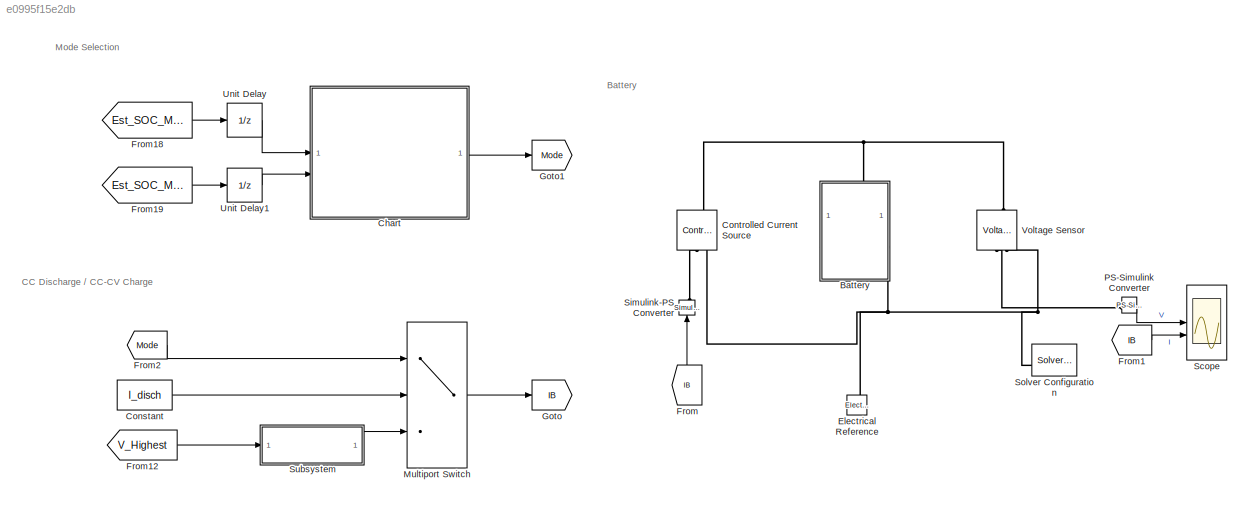
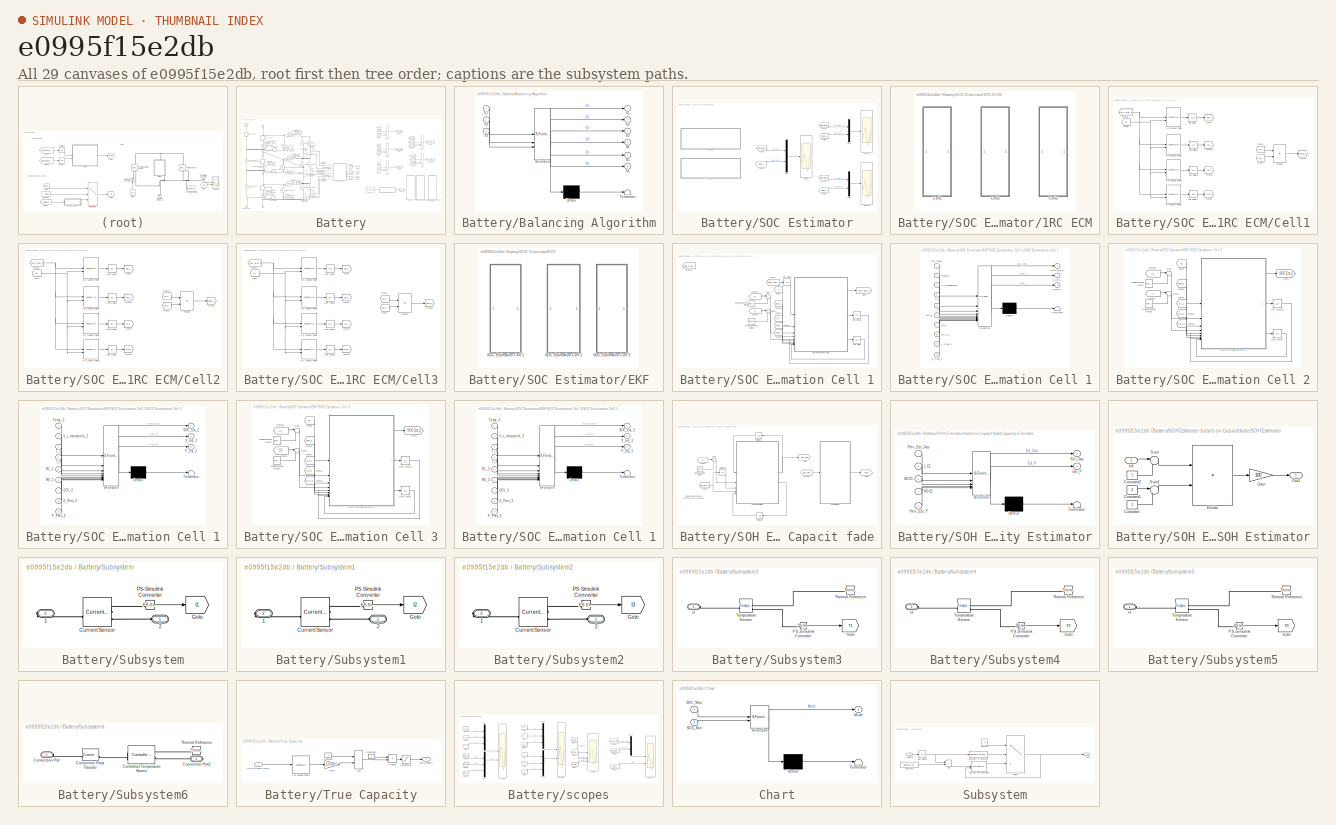
[diagram: thumbnail index - all 29 canvases of the model, root first then tree order]
MODEL slx_e0995f15e2db
KIND model
CONFIG AbsTol = auto
CONFIG EnableMultiTasking = off
CONFIG FixedStep = 0.1
CONFIG MaxStep = auto
CONFIG MinStep = auto
CONFIG RelTol = 1e-3
CONFIG SampleTimeConstraint = Unconstrained
CONFIG SolverName = ode1be
CONFIG StartTime = 0.0
CONFIG StopTime = 5*3600
WORKSPACE source: mxarray member
WORKSPACE CC = 16
WORKSPACE Cell_Max_Voltage = 4.1
WORKSPACE I_disch = -16
WORKSPACE R_EOL = 0.3
WORKSPACE R_new = 0.05
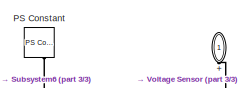
[diagram: Battery - part 1/3, top left region]
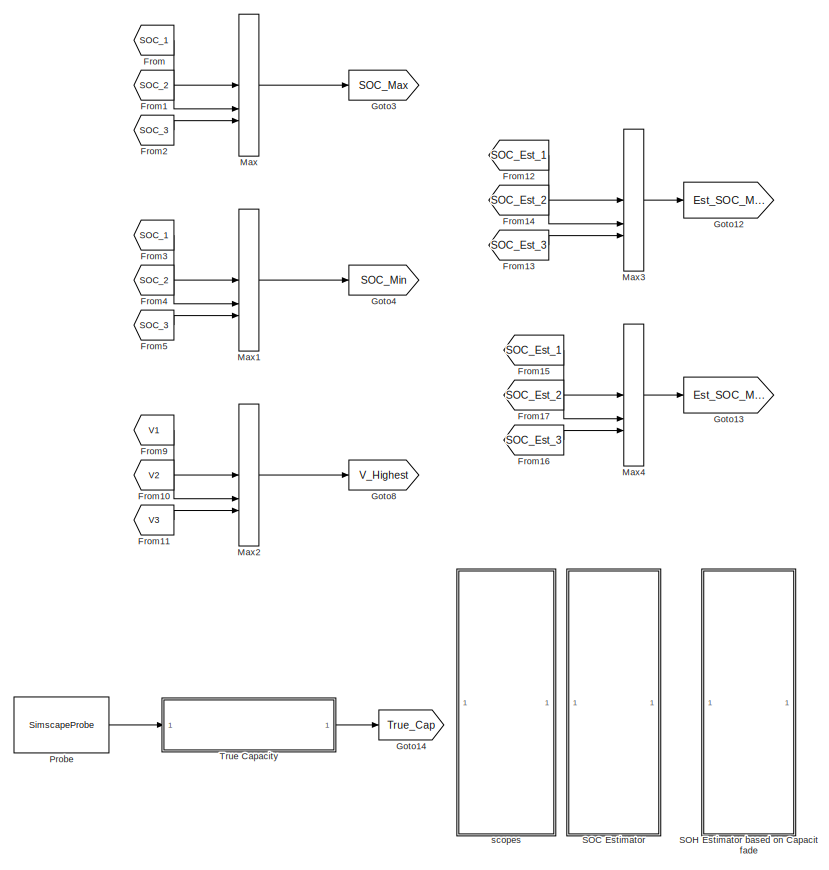
[diagram: Battery - part 2/3, right side, full height]
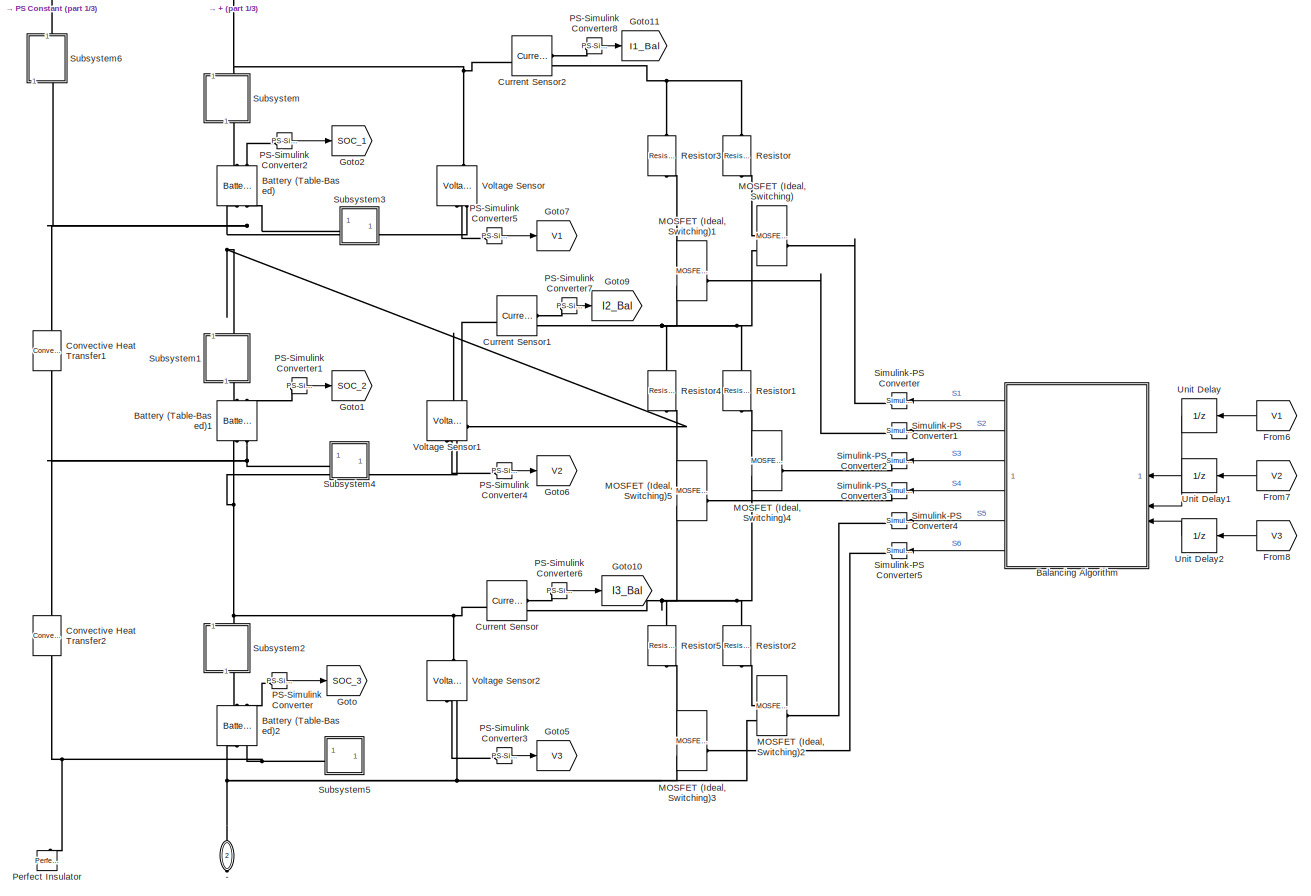
[diagram: Battery - part 3/3, left side, full height]
BLOCK [SubSystem] Battery
  NameLocation = left
  PortSchema = {"entries":[{"content":{"sides":[{"content":{},"type":"ConnectorPlacement.EquallySpacedRectSide","uuid":"9035559a-89bb-4205-8002-b8844e8b5923"},{"content":{"side":"RIGHT"},"type":"ConnectorPlacement.EquallySpacedRectSide","uuid":"f96f25ce-4def-4132-84ff-265e18101752"},{"content":{"connectorIds":["LConn1"],"side":"TOP"},"type":"ConnectorPlacement.EquallySpacedRectSide","uuid":"d277b9e1-9996-4eaa-b5...<+354ch>
BLOCK [PMIOPort] Battery/ +
  NameLocation = right
  Side = Left
BLOCK [PMIOPort] Battery/ -
  NameLocation = right
  Port = 2
  Side = Right
BLOCK [SubSystem] Battery/Balancing Algorithm
  ErrorFcn = Stateflow.Translate.translate
  PermitHierarchicalResolution = ExplicitOnly
  SFBlockType = Chart
  TreatAsAtomicUnit = on
BLOCK [Demux] Battery/Balancing Algorithm/ Demux 
  Outputs = 1
BLOCK [S-Function] Battery/Balancing Algorithm/ SFunction 
  EnableBusSupport = on
  FunctionName = sf_sfun
  PortCounts = [3 7]
  SFcnIsStateOwnerBlock = off
  SFunctionDeploymentMode = off
  Tag = Stateflow S-Function 1
BLOCK [Terminator] Battery/Balancing Algorithm/ Terminator 
BLOCK [Outport] Battery/Balancing Algorithm/S1
BLOCK [Outport] Battery/Balancing Algorithm/S2
  Port = 2
BLOCK [Outport] Battery/Balancing Algorithm/S3
  Port = 3
BLOCK [Outport] Battery/Balancing Algorithm/S4
  Port = 4
BLOCK [Outport] Battery/Balancing Algorithm/S5
  Port = 5
BLOCK [Outport] Battery/Balancing Algorithm/S6
  Port = 6
BLOCK [Inport] Battery/Balancing Algorithm/V1
BLOCK [Inport] Battery/Balancing Algorithm/V2
  Port = 2
BLOCK [Inport] Battery/Balancing Algorithm/V3
  Port = 3
BLOCK [Reference] Battery/Battery (Table-Based)  REF=batteryecm_lib/Battery
(Table-Based)
  LibrarySourceBlock = batt_lib/Cells/Battery\n(Table-Based)
  NameLocation = right
  SourceBlock = batteryecm_lib/Battery\n(Table-Based)
  SourceType = Battery\n(Table-Based)
BLOCK [Reference] Battery/Battery (Table-Based)1  REF=batteryecm_lib/Battery
(Table-Based)
  LibrarySourceBlock = batt_lib/Cells/Battery\n(Table-Based)
  NameLocation = right
  SourceBlock = batteryecm_lib/Battery\n(Table-Based)
  SourceType = Battery\n(Table-Based)
BLOCK [Reference] Battery/Battery (Table-Based)2  REF=batteryecm_lib/Battery
(Table-Based)
  LibrarySourceBlock = batt_lib/Cells/Battery\n(Table-Based)
  NameLocation = right
  SourceBlock = batteryecm_lib/Battery\n(Table-Based)
  SourceType = Battery\n(Table-Based)
BLOCK [Reference] Battery/Convective Heat Transfer1  REF=fl_lib/Thermal/Thermal Elements/Convective Heat
Transfer
  NameLocation = right
  SourceBlock = fl_lib/Thermal/Thermal Elements/Convective Heat\nTransfer
  SourceType = Convective Heat\nTransfer
BLOCK [Reference] Battery/Convective Heat Transfer2  REF=fl_lib/Thermal/Thermal Elements/Convective Heat
Transfer
  NameLocation = right
  SourceBlock = fl_lib/Thermal/Thermal Elements/Convective Heat\nTransfer
  SourceType = Convective Heat\nTransfer
BLOCK [Reference] Battery/Current Sensor  REF=fl_lib/Electrical/Electrical Sensors/Current Sensor
  SourceBlock = fl_lib/Electrical/Electrical Sensors/Current Sensor
  SourceType = Current Sensor
BLOCK [Reference] Battery/Current Sensor1  REF=fl_lib/Electrical/Electrical Sensors/Current Sensor
  SourceBlock = fl_lib/Electrical/Electrical Sensors/Current Sensor
  SourceType = Current Sensor
BLOCK [Reference] Battery/Current Sensor2  REF=fl_lib/Electrical/Electrical Sensors/Current Sensor
  SourceBlock = fl_lib/Electrical/Electrical Sensors/Current Sensor
  SourceType = Current Sensor
BLOCK [From] Battery/From
  GotoTag = SOC_1
  TagVisibility = global
BLOCK [From] Battery/From1
  GotoTag = SOC_2
  TagVisibility = global
BLOCK [From] Battery/From10
  GotoTag = V2
  TagVisibility = global
BLOCK [From] Battery/From11
  GotoTag = V3
  TagVisibility = global
BLOCK [From] Battery/From12
  GotoTag = SOC_Est_1
  TagVisibility = global
BLOCK [From] Battery/From13
  GotoTag = SOC_Est_3
  TagVisibility = global
BLOCK [From] Battery/From14
  GotoTag = SOC_Est_2
  TagVisibility = global
BLOCK [From] Battery/From15
  GotoTag = SOC_Est_1
  TagVisibility = global
BLOCK [From] Battery/From16
  GotoTag = SOC_Est_3
  TagVisibility = global
BLOCK [From] Battery/From17
  GotoTag = SOC_Est_2
  TagVisibility = global
BLOCK [From] Battery/From2
  GotoTag = SOC_3
  TagVisibility = global
BLOCK [From] Battery/From3
  GotoTag = SOC_1
  TagVisibility = global
BLOCK [From] Battery/From4
  GotoTag = SOC_2
  TagVisibility = global
BLOCK [From] Battery/From5
  GotoTag = SOC_3
  TagVisibility = global
BLOCK [From] Battery/From6
  GotoTag = V1
  NameLocation = top
  TagVisibility = global
BLOCK [From] Battery/From7
  GotoTag = V2
  NameLocation = top
  TagVisibility = global
BLOCK [From] Battery/From8
  GotoTag = V3
  NameLocation = top
  TagVisibility = global
BLOCK [From] Battery/From9
  GotoTag = V1
  TagVisibility = global
BLOCK [Goto] Battery/Goto
  GotoTag = SOC_3
  TagVisibility = global
BLOCK [Goto] Battery/Goto1
  GotoTag = SOC_2
  TagVisibility = global
BLOCK [Goto] Battery/Goto10
  GotoTag = I3_Bal
  TagVisibility = global
BLOCK [Goto] Battery/Goto11
  GotoTag = I1_Bal
  TagVisibility = global
BLOCK [Goto] Battery/Goto12
  GotoTag = Est_SOC_Max
  TagVisibility = global
BLOCK [Goto] Battery/Goto13
  GotoTag = Est_SOC_Min
  TagVisibility = global
BLOCK [Goto] Battery/Goto14
  GotoTag = True_Cap
  TagVisibility = global
BLOCK [Goto] Battery/Goto2
  GotoTag = SOC_1
  TagVisibility = global
BLOCK [Goto] Battery/Goto3
  GotoTag = SOC_Max
  TagVisibility = global
BLOCK [Goto] Battery/Goto4
  GotoTag = SOC_Min
  TagVisibility = global
BLOCK [Goto] Battery/Goto5
  GotoTag = V3
  TagVisibility = global
BLOCK [Goto] Battery/Goto6
  GotoTag = V2
  TagVisibility = global
BLOCK [Goto] Battery/Goto7
  GotoTag = V1
  TagVisibility = global
BLOCK [Goto] Battery/Goto8
  GotoTag = V_Highest
  TagVisibility = global
BLOCK [Goto] Battery/Goto9
  GotoTag = I2_Bal
  TagVisibility = global
BLOCK [Reference] Battery/MOSFET (Ideal, Switching)  REF=ee_lib/Semiconductors &
Converters/MOSFET
(Ideal,
Switching)
  SourceBlock = ee_lib/Semiconductors &\nConverters/MOSFET\n(Ideal,\nSwitching)
  SourceType = MOSFET\n(Ideal,\nSwitching)
BLOCK [Reference] Battery/MOSFET (Ideal, Switching)1  REF=ee_lib/Semiconductors &
Converters/MOSFET
(Ideal,
Switching)
  SourceBlock = ee_lib/Semiconductors &\nConverters/MOSFET\n(Ideal,\nSwitching)
  SourceType = MOSFET\n(Ideal,\nSwitching)
BLOCK [Reference] Battery/MOSFET (Ideal, Switching)2  REF=ee_lib/Semiconductors &
Converters/MOSFET
(Ideal,
Switching)
  SourceBlock = ee_lib/Semiconductors &\nConverters/MOSFET\n(Ideal,\nSwitching)
  SourceType = MOSFET\n(Ideal,\nSwitching)
BLOCK [Reference] Battery/MOSFET (Ideal, Switching)3  REF=ee_lib/Semiconductors &
Converters/MOSFET
(Ideal,
Switching)
  SourceBlock = ee_lib/Semiconductors &\nConverters/MOSFET\n(Ideal,\nSwitching)
  SourceType = MOSFET\n(Ideal,\nSwitching)
BLOCK [Reference] Battery/MOSFET (Ideal, Switching)4  REF=ee_lib/Semiconductors &
Converters/MOSFET
(Ideal,
Switching)
  SourceBlock = ee_lib/Semiconductors &\nConverters/MOSFET\n(Ideal,\nSwitching)
  SourceType = MOSFET\n(Ideal,\nSwitching)
BLOCK [Reference] Battery/MOSFET (Ideal, Switching)5  REF=ee_lib/Semiconductors &
Converters/MOSFET
(Ideal,
Switching)
  SourceBlock = ee_lib/Semiconductors &\nConverters/MOSFET\n(Ideal,\nSwitching)
  SourceType = MOSFET\n(Ideal,\nSwitching)
BLOCK [MinMax] Battery/Max
  Function = max
  Inputs = 3
BLOCK [MinMax] Battery/Max1
  Inputs = 3
BLOCK [MinMax] Battery/Max2
  Function = max
  Inputs = 3
BLOCK [MinMax] Battery/Max3
  Function = max
  Inputs = 3
BLOCK [MinMax] Battery/Max4
  Inputs = 3
BLOCK [Reference] Battery/PS Constant  REF=fl_lib/Physical Signals/Sources/PS Constant
  NameLocation = left
  SourceBlock = fl_lib/Physical Signals/Sources/PS Constant
  SourceType = PS Constant
BLOCK [Reference] Battery/PS-Simulink Converter  REF=nesl_utility/PS-Simulink
Converter
  SourceBlock = nesl_utility/PS-Simulink\nConverter
  SourceType = PS-Simulink\nConverter
BLOCK [Reference] Battery/PS-Simulink Converter1  REF=nesl_utility/PS-Simulink
Converter
  SourceBlock = nesl_utility/PS-Simulink\nConverter
  SourceType = PS-Simulink\nConverter
BLOCK [Reference] Battery/PS-Simulink Converter2  REF=nesl_utility/PS-Simulink
Converter
  SourceBlock = nesl_utility/PS-Simulink\nConverter
  SourceType = PS-Simulink\nConverter
BLOCK [Reference] Battery/PS-Simulink Converter3  REF=nesl_utility/PS-Simulink
Converter
  SourceBlock = nesl_utility/PS-Simulink\nConverter
  SourceType = PS-Simulink\nConverter
BLOCK [Reference] Battery/PS-Simulink Converter4  REF=nesl_utility/PS-Simulink
Converter
  SourceBlock = nesl_utility/PS-Simulink\nConverter
  SourceType = PS-Simulink\nConverter
BLOCK [Reference] Battery/PS-Simulink Converter5  REF=nesl_utility/PS-Simulink
Converter
  SourceBlock = nesl_utility/PS-Simulink\nConverter
  SourceType = PS-Simulink\nConverter
BLOCK [Reference] Battery/PS-Simulink Converter6  REF=nesl_utility/PS-Simulink
Converter
  SourceBlock = nesl_utility/PS-Simulink\nConverter
  SourceType = PS-Simulink\nConverter
BLOCK [Reference] Battery/PS-Simulink Converter7  REF=nesl_utility/PS-Simulink
Converter
  SourceBlock = nesl_utility/PS-Simulink\nConverter
  SourceType = PS-Simulink\nConverter
BLOCK [Reference] Battery/PS-Simulink Converter8  REF=nesl_utility/PS-Simulink
Converter
  SourceBlock = nesl_utility/PS-Simulink\nConverter
  SourceType = PS-Simulink\nConverter
BLOCK [Reference] Battery/Perfect Insulator  REF=fl_lib/Thermal/Thermal Elements/Perfect Insulator
  NameLocation = right
  SourceBlock = fl_lib/Thermal/Thermal Elements/Perfect Insulator
  SourceType = Perfect Insulator
BLOCK [SimscapeProbe] Battery/Probe
  BoundBlock = 29
  Variables = {num_cycles}
BLOCK [Reference] Battery/Resistor  REF=fl_lib/Electrical/Electrical Elements/Resistor
  NameLocation = left
  SourceBlock = fl_lib/Electrical/Electrical Elements/Resistor
  SourceType = Resistor
BLOCK [Reference] Battery/Resistor1  REF=fl_lib/Electrical/Electrical Elements/Resistor
  NameLocation = left
  SourceBlock = fl_lib/Electrical/Electrical Elements/Resistor
  SourceType = Resistor
BLOCK [Reference] Battery/Resistor2  REF=fl_lib/Electrical/Electrical Elements/Resistor
  NameLocation = left
  SourceBlock = fl_lib/Electrical/Electrical Elements/Resistor
  SourceType = Resistor
BLOCK [Reference] Battery/Resistor3  REF=fl_lib/Electrical/Electrical Elements/Resistor
  NameLocation = left
  SourceBlock = fl_lib/Electrical/Electrical Elements/Resistor
  SourceType = Resistor
BLOCK [Reference] Battery/Resistor4  REF=fl_lib/Electrical/Electrical Elements/Resistor
  NameLocation = left
  SourceBlock = fl_lib/Electrical/Electrical Elements/Resistor
  SourceType = Resistor
BLOCK [Reference] Battery/Resistor5  REF=fl_lib/Electrical/Electrical Elements/Resistor
  NameLocation = left
  SourceBlock = fl_lib/Electrical/Electrical Elements/Resistor
  SourceType = Resistor
BLOCK [SubSystem] Battery/SOC Estimator
BLOCK [SubSystem] Battery/SOC Estimator/1RC ECM
BLOCK [SubSystem] Battery/SOC Estimator/1RC ECM/Cell1
BLOCK [Lookup_n-D] Battery/SOC Estimator/1RC ECM/Cell1/2-D Lookup Table
  BreakpointsForDimension1 = [0;0.1;0.2;0.3;0.4;0.5;0.6;0.7;0.8;0.9000;1.0000]
  BreakpointsForDimension2 = [278.15 293.15 313.15]
  InputPortMap = u0,u1
  InternalRulePriority = Speed
  RndMeth = Simplest
  Table = [0.0117    0.0085    0.0090;\n    0.0110    0.0085    0.0090;\n    0.0112    0.0086    0.0091;\n    0.0114    0.0087    0.0092;\n    0.0110    0.0084    0.0090;\n    0.0109    0.0083    0.0088;\n    0.0107    0.0082    0.0086;\n    0.0107    0.0083    0.0091;\n    0.0109    0.0086    0.0095;\n    0.0113    0.0085    0.0089;\n    0.0116    0.0085    0.0089]
BLOCK [Lookup_n-D] Battery/SOC Estimator/1RC ECM/Cell1/2-D Lookup Table1
  BreakpointsForDimension1 = [0;0.1;0.2;0.3;0.4;0.5;0.6;0.7;0.8;0.9000;1.0000]
  BreakpointsForDimension2 = [278.15 293.15 313.15]
  InputPortMap = u0,u1
  InternalRulePriority = Speed
  RndMeth = Simplest
  Table = [0.0109    0.0029    0.0013;\n    0.0069    0.0024    0.0012;\n    0.0060    0.0022    0.0011;\n    0.0056    0.0021    0.0011;\n    0.0052    0.0020    0.0010;\n    0.0047    0.0016    0.0009;\n    0.0034    0.0016    0.0010;\n    0.0033    0.0023    0.0014;\n    0.0033    0.0018    0.0011;\n    0.0028    0.0017    0.0011;\n    0.0026    0.0016    0.0010]
BLOCK [Lookup_n-D] Battery/SOC Estimator/1RC ECM/Cell1/2-D Lookup Table2
  BreakpointsForDimension1 = [0;0.1;0.2;0.3;0.4;0.5;0.6;0.7;0.8;0.9000;1.0000]
  BreakpointsForDimension2 = [278.15 293.15 313.15]
  InputPortMap = u0,u1
  InternalRulePriority = Speed
  RndMeth = Simplest
  Table = [\n    1917, 12414, 30615;\n    4652, 18875, 33000;\n    3533, 12864, 40000;\n    23286, 4810, 47545;\n    20000, 3100, 36500;\n    1745, 18750, 26333;\n    18029, 33625, 48300;\n    15030, 53696, 38143;\n    12242, 18389, 26727;\n    10000, 19882, 16727;\n    9038, 23375, 3600\n];
BLOCK [Lookup_n-D] Battery/SOC Estimator/1RC ECM/Cell1/2-D Lookup Table3
  BreakpointsForDimension1 = [0;0.1;0.2;0.3;0.4;0.5;0.6;0.7;0.8;0.9000;1.0000]
  BreakpointsForDimension2 = [278.15 293.15 313.15]
  InputPortMap = u0,u1
  InternalRulePriority = Speed
  RndMeth = Simplest
  Table = [3.4966    3.5057    3.5148;\n    3.5519    3.5660    3.5653;\n    3.5813    3.5911    3.5999;\n    3.6183    3.6337    3.6402;\n    3.6871    3.6921    3.6993;\n    3.7066    3.7127    3.7213;\n    3.7611    3.7665    3.7922;\n    3.8111    3.8531    3.8971;\n    3.9131    3.9259    3.9376;\n    4.0748    4.0777    4.0821;\n    4.1923    4.1928    4.1930]
BLOCK [From] Battery/SOC Estimator/1RC ECM/Cell1/From
  GotoTag = T1
  TagVisibility = global
BLOCK [From] Battery/SOC Estimator/1RC ECM/Cell1/From1
  GotoTag = R1_1
  TagVisibility = global
BLOCK [From] Battery/SOC Estimator/1RC ECM/Cell1/From2
  GotoTag = C1_1
  TagVisibility = global
BLOCK [From] Battery/SOC Estimator/1RC ECM/Cell1/From8
  GotoTag = SOC_Est_1
  TagVisibility = global
BLOCK [Goto] Battery/SOC Estimator/1RC ECM/Cell1/Goto
  GotoTag = R0_1
  TagVisibility = global
BLOCK [Goto] Battery/SOC Estimator/1RC ECM/Cell1/Goto1
  GotoTag = R1_1
  TagVisibility = global
BLOCK [Goto] Battery/SOC Estimator/1RC ECM/Cell1/Goto2
  GotoTag = C1_1
  TagVisibility = global
BLOCK [Goto] Battery/SOC Estimator/1RC ECM/Cell1/Goto3
  GotoTag = OCV_1
  TagVisibility = global
BLOCK [Goto] Battery/SOC Estimator/1RC ECM/Cell1/Goto4
  GotoTag = Time_1
  TagVisibility = global
BLOCK [Product] Battery/SOC Estimator/1RC ECM/Cell1/Product
BLOCK [UnitDelay] Battery/SOC Estimator/1RC ECM/Cell1/Unit Delay
  HasFrameUpgradeWarning = on
  InitialCondition = 0.0084
  SampleTime = -1
BLOCK [UnitDelay] Battery/SOC Estimator/1RC ECM/Cell1/Unit Delay1
  HasFrameUpgradeWarning = on
  InitialCondition = 0.0020
  SampleTime = -1
BLOCK [UnitDelay] Battery/SOC Estimator/1RC ECM/Cell1/Unit Delay2
  HasFrameUpgradeWarning = on
  InitialCondition = 0.0310
  SampleTime = -1
BLOCK [UnitDelay] Battery/SOC Estimator/1RC ECM/Cell1/Unit Delay3
  HasFrameUpgradeWarning = on
  InitialCondition = 3.6921
  SampleTime = -1
BLOCK [SubSystem] Battery/SOC Estimator/1RC ECM/Cell2
BLOCK [Lookup_n-D] Battery/SOC Estimator/1RC ECM/Cell2/2-D Lookup Table
  BreakpointsForDimension1 = [0;0.1;0.2;0.3;0.4;0.5;0.6;0.7;0.8;0.9000;1.0000]
  BreakpointsForDimension2 = [278.15 293.15 313.15]
  InputPortMap = u0,u1
  InternalRulePriority = Speed
  RndMeth = Simplest
  Table = [0.0113    0.0091    0.0083;\n    0.0108    0.0079    0.0092;\n    0.0111    0.0083    0.0094;\n    0.0110    0.0090    0.0096;\n    0.0108    0.0080    0.0087;\n    0.0107    0.0085    0.0091;\n    0.0106    0.0081    0.0087;\n    0.0106    0.0082    0.0090;\n    0.0111    0.0084    0.0093;\n    0.0111    0.0082    0.0090;\n    0.0115    0.0084    0.0093]
BLOCK [Lookup_n-D] Battery/SOC Estimator/1RC ECM/Cell2/2-D Lookup Table1
  BreakpointsForDimension1 = [0;0.1;0.2;0.3;0.4;0.5;0.6;0.7;0.8;0.9000;1.0000]
  BreakpointsForDimension2 = [278.15 293.15 313.15]
  InputPortMap = u0,u1
  InternalRulePriority = Speed
  RndMeth = Simplest
  Table = [0.0107    0.0028    0.0012;\n               0.0070    0.0023    0.0011;\n               0.0061    0.0021    0.0012;\n               0.0057    0.0022    0.0010;\n               0.0051    0.0021    0.0010;\n               0.0048    0.0017    0.0009;\n               0.0035    0.0017    0.0010;\n               0.0034    0.0023    0.0015;\n               0.0033    0.0018    0.0011;\n               0.0027    0....<+58ch>
BLOCK [Lookup_n-D] Battery/SOC Estimator/1RC ECM/Cell2/2-D Lookup Table2
  BreakpointsForDimension1 = [0;0.1;0.2;0.3;0.4;0.5;0.6;0.7;0.8;0.9000;1.0000]
  BreakpointsForDimension2 = [278.15 293.15 313.15]
  InputPortMap = u0,u1
  InternalRulePriority = Speed
  RndMeth = Simplest
  Table = [\n    2140.0, 13357.0, 34500.0;\n    47860.0, 20391.0, 35455.0;\n    35740.0, 13762.0, 37083.0;\n    23018.0, 4909.0, 51200.0;\n    20216.0, 3238.0, 36700.0;\n    16670.0, 18706.0, 24667.0;\n    17743.0, 32588.0, 49300.0;\n    14382.0, 53783.0, 35400.0;\n    12455.0, 18222.0, 27364.0;\n    10630.0, 21688.0, 17636.0;\n    9760.0, 22118.0, 2500.0\n];
BLOCK [Lookup_n-D] Battery/SOC Estimator/1RC ECM/Cell2/2-D Lookup Table3
  BreakpointsForDimension1 = [0;0.1;0.2;0.3;0.4;0.5;0.6;0.7;0.8;0.9000;1.0000]
  BreakpointsForDimension2 = [278.15 293.15 313.15]
  InputPortMap = u0,u1
  InternalRulePriority = Speed
  RndMeth = Simplest
  Table = [3.3982    3.4675    3.5113;\n    3.4661    3.4887    3.5583;\n    3.5049    3.5349    3.5691;\n    3.6028    3.6097    3.6454;\n    3.6308    3.6507    3.6665;\n    3.6894    3.7048    3.7223;\n    3.7552    3.7841    3.8085;\n    3.8036    3.8479    3.8945;\n    3.9046    3.9305    3.9620;\n    4.0752    4.0786    4.1127;\n    4.1734    4.1926    4.2048]
BLOCK [From] Battery/SOC Estimator/1RC ECM/Cell2/From
  GotoTag = T2
  TagVisibility = global
BLOCK [From] Battery/SOC Estimator/1RC ECM/Cell2/From1
  GotoTag = SOC_Est_2
  TagVisibility = global
BLOCK [From] Battery/SOC Estimator/1RC ECM/Cell2/From2
  GotoTag = R1_2
  TagVisibility = global
BLOCK [From] Battery/SOC Estimator/1RC ECM/Cell2/From3
  GotoTag = C1_2
  TagVisibility = global
BLOCK [Goto] Battery/SOC Estimator/1RC ECM/Cell2/Goto
  GotoTag = R0_2
  TagVisibility = global
BLOCK [Goto] Battery/SOC Estimator/1RC ECM/Cell2/Goto1
  GotoTag = R1_2
  TagVisibility = global
BLOCK [Goto] Battery/SOC Estimator/1RC ECM/Cell2/Goto2
  GotoTag = C1_2
  TagVisibility = global
BLOCK [Goto] Battery/SOC Estimator/1RC ECM/Cell2/Goto3
  GotoTag = OCV_2
  TagVisibility = global
BLOCK [Goto] Battery/SOC Estimator/1RC ECM/Cell2/Goto4
  GotoTag = Time_2
  TagVisibility = global
BLOCK [Product] Battery/SOC Estimator/1RC ECM/Cell2/Product
BLOCK [UnitDelay] Battery/SOC Estimator/1RC ECM/Cell2/Unit Delay
  HasFrameUpgradeWarning = on
  InitialCondition = 0.0084
  SampleTime = -1
BLOCK [UnitDelay] Battery/SOC Estimator/1RC ECM/Cell2/Unit Delay1
  HasFrameUpgradeWarning = on
  InitialCondition = 0.0084
  SampleTime = -1
BLOCK [UnitDelay] Battery/SOC Estimator/1RC ECM/Cell2/Unit Delay2
  HasFrameUpgradeWarning = on
  InitialCondition = 0.0084
  SampleTime = -1
BLOCK [UnitDelay] Battery/SOC Estimator/1RC ECM/Cell2/Unit Delay3
  HasFrameUpgradeWarning = on
  InitialCondition = 0.0084
  SampleTime = -1
BLOCK [SubSystem] Battery/SOC Estimator/1RC ECM/Cell3
BLOCK [Lookup_n-D] Battery/SOC Estimator/1RC ECM/Cell3/2-D Lookup Table
  BreakpointsForDimension1 = [0;0.1;0.2;0.3;0.4;0.5;0.6;0.7;0.8;0.9000;1.0000]
  BreakpointsForDimension2 = [278.15 293.15 313.15]
  InputPortMap = u0,u1
  InternalRulePriority = Speed
  RndMeth = Simplest
  Table = [0.0111    0.0088    0.0094;\n    0.0109    0.0083    0.0091;\n    0.0113    0.0087    0.0092;\n    0.0115    0.0089    0.0090;\n    0.0112    0.0083    0.0092;\n    0.0108    0.0082    0.0085;\n    0.0109    0.0080    0.0088;\n    0.0108    0.0085    0.0092;\n    0.0110    0.0087    0.0095;\n    0.0110    0.0084    0.0090;\n    0.0112    0.0085    0.0092]
BLOCK [Lookup_n-D] Battery/SOC Estimator/1RC ECM/Cell3/2-D Lookup Table1
  BreakpointsForDimension1 = [0;0.1;0.2;0.3;0.4;0.5;0.6;0.7;0.8;0.9000;1.0000]
  BreakpointsForDimension2 = [278.15 293.15 313.15]
  InputPortMap = u0,u1
  InternalRulePriority = Speed
  RndMeth = Simplest
  Table = [0.0108    0.0029    0.0014;\n    0.0071    0.0025    0.0013;\n    0.0062    0.0023    0.0012;\n    0.0058    0.0022    0.0011;\n    0.0053    0.0020    0.0011;\n    0.0049    0.0017    0.0008;\n    0.0034    0.0016    0.0011;\n    0.0032    0.0024    0.0015;\n    0.0034    0.0019    0.0012;\n    0.0029    0.0018    0.0012;\n    0.0027    0.0016    0.0011]
BLOCK [Lookup_n-D] Battery/SOC Estimator/1RC ECM/Cell3/2-D Lookup Table2
  BreakpointsForDimension1 = [0;0.1;0.2;0.3;0.4;0.5;0.6;0.7;0.8;0.9000;1.0000]
  BreakpointsForDimension2 = [278.15 293.15 313.15]
  InputPortMap = u0,u1
  InternalRulePriority = Speed
  RndMeth = Simplest
  Table = [\n    2481.0, 14517.0, 31143.0;\n    49440.0, 18680.0, 29154.0;\n    34030.0, 12000.0, 37833.0;\n    22397.0, 5227.0, 48091.0;\n    19547.0, 3000.0, 33909.0;\n    14490.0, 17706.0, 26625.0;\n    18647.0, 32875.0, 44091.0;\n    15750.0, 50792.0, 35200.0;\n    12294.0, 17368.0, 25250.0;\n    98280.0, 18944.0, 14917.0;\n    89260.0, 24188.0, 2455.0\n];
BLOCK [Lookup_n-D] Battery/SOC Estimator/1RC ECM/Cell3/2-D Lookup Table3
  BreakpointsForDimension1 = [0;0.1;0.2;0.3;0.4;0.5;0.6;0.7;0.8;0.9000;1.0000]
  BreakpointsForDimension2 = [278.15 293.15 313.15]
  InputPortMap = u0,u1
  InternalRulePriority = Speed
  RndMeth = Simplest
  Table = [3.5401    3.5396    3.5774;\n    3.5358    3.5420    3.5681;\n    3.5927    3.5929    3.6060;\n    3.6439    3.6419    3.6703;\n    3.6918    3.7065    3.7267;\n    3.7452    3.7613    3.7676;\n    3.8012    3.8302    3.8439;\n    3.8387    3.8762    3.9140;\n    3.9398    3.9668    3.9903;\n    4.1102    4.1221    4.1420;\n    4.1742    4.2065    4.2399]
BLOCK [From] Battery/SOC Estimator/1RC ECM/Cell3/From
  GotoTag = T3
  TagVisibility = global
BLOCK [From] Battery/SOC Estimator/1RC ECM/Cell3/From1
  GotoTag = SOC_Est_3
  TagVisibility = global
BLOCK [From] Battery/SOC Estimator/1RC ECM/Cell3/From2
  GotoTag = R1_3
  TagVisibility = global
BLOCK [From] Battery/SOC Estimator/1RC ECM/Cell3/From3
  GotoTag = C1_3
  TagVisibility = global
BLOCK [Goto] Battery/SOC Estimator/1RC ECM/Cell3/Goto
  GotoTag = R0_3
  TagVisibility = global
BLOCK [Goto] Battery/SOC Estimator/1RC ECM/Cell3/Goto1
  GotoTag = R1_3
  TagVisibility = global
BLOCK [Goto] Battery/SOC Estimator/1RC ECM/Cell3/Goto2
  GotoTag = C1_3
  TagVisibility = global
BLOCK [Goto] Battery/SOC Estimator/1RC ECM/Cell3/Goto3
  GotoTag = OCV_3
  TagVisibility = global
BLOCK [Goto] Battery/SOC Estimator/1RC ECM/Cell3/Goto4
  GotoTag = Time_3
  TagVisibility = global
BLOCK [Product] Battery/SOC Estimator/1RC ECM/Cell3/Product
BLOCK [UnitDelay] Battery/SOC Estimator/1RC ECM/Cell3/Unit Delay
  HasFrameUpgradeWarning = on
  InitialCondition = 0.0084
  SampleTime = -1
BLOCK [UnitDelay] Battery/SOC Estimator/1RC ECM/Cell3/Unit Delay1
  HasFrameUpgradeWarning = on
  InitialCondition = 0.0084
  SampleTime = -1
BLOCK [UnitDelay] Battery/SOC Estimator/1RC ECM/Cell3/Unit Delay2
  HasFrameUpgradeWarning = on
  InitialCondition = 0.0084
  SampleTime = -1
BLOCK [UnitDelay] Battery/SOC Estimator/1RC ECM/Cell3/Unit Delay3
  HasFrameUpgradeWarning = on
  InitialCondition = 0.0084
  SampleTime = -1
BLOCK [SubSystem] Battery/SOC Estimator/EKF
BLOCK [SubSystem] Battery/SOC Estimator/EKF/SOC Estimation Cell 1
BLOCK [From] Battery/SOC Estimator/EKF/SOC Estimation Cell 1/From
  GotoTag = T1
  TagVisibility = global
BLOCK [From] Battery/SOC Estimator/EKF/SOC Estimation Cell 1/From1
  GotoTag = I1
  TagVisibility = global
BLOCK [From] Battery/SOC Estimator/EKF/SOC Estimation Cell 1/From12
  GotoTag = V1
  TagVisibility = global
BLOCK [From] Battery/SOC Estimator/EKF/SOC Estimation Cell 1/From2
  GotoTag = Est_Cap
  TagVisibility = global
BLOCK [From] Battery/SOC Estimator/EKF/SOC Estimation Cell 1/From3
  GotoTag = Time_1
  TagVisibility = global
BLOCK [From] Battery/SOC Estimator/EKF/SOC Estimation Cell 1/From4
  GotoTag = R1_1
  TagVisibility = global
BLOCK [From] Battery/SOC Estimator/EKF/SOC Estimation Cell 1/From5
  GotoTag = OCV_1
  TagVisibility = global
BLOCK [From] Battery/SOC Estimator/EKF/SOC Estimation Cell 1/From6
  GotoTag = R0_1
  TagVisibility = global
BLOCK [From] Battery/SOC Estimator/EKF/SOC Estimation Cell 1/From7
  GotoTag = Est_Cap
  TagVisibility = global
BLOCK [Goto] Battery/SOC Estimator/EKF/SOC Estimation Cell 1/Goto
  GotoTag = SOC_Est_1
  TagVisibility = global
BLOCK [Reference] Battery/SOC Estimator/EKF/SOC Estimation Cell 1/Measurement Noise  REF=simulink/Sources/Band-Limited
White Noise
  SourceBlock = simulink/Sources/Band-Limited\nWhite Noise
  SourceType = Band-Limited White Noise.
BLOCK [Reference] Battery/SOC Estimator/EKF/SOC Estimation Cell 1/Measurement Noise1  REF=simulink/Sources/Band-Limited
White Noise
  SourceBlock = simulink/Sources/Band-Limited\nWhite Noise
  SourceType = Band-Limited White Noise.
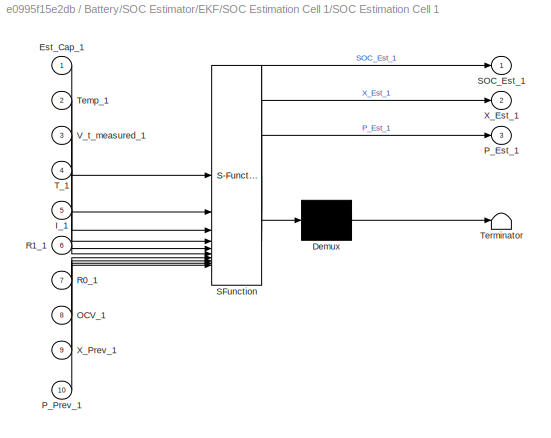
BLOCK [SubSystem] Battery/SOC Estimator/EKF/SOC Estimation Cell 1/SOC Estimation Cell 1
  ErrorFcn = Stateflow.Translate.translate
  PermitHierarchicalResolution = ExplicitOnly
  SFBlockType = MATLAB Function
  TreatAsAtomicUnit = on
BLOCK [Demux] Battery/SOC Estimator/EKF/SOC Estimation Cell 1/SOC Estimation Cell 1/ Demux 
  Outputs = 1
BLOCK [S-Function] Battery/SOC Estimator/EKF/SOC Estimation Cell 1/SOC Estimation Cell 1/ SFunction 
  EnableBusSupport = on
  FunctionName = sf_sfun
  PortCounts = [10 4]
  SFcnIsStateOwnerBlock = off
  SFunctionDeploymentMode = off
  Tag = Stateflow S-Function 10
BLOCK [Terminator] Battery/SOC Estimator/EKF/SOC Estimation Cell 1/SOC Estimation Cell 1/ Terminator 
BLOCK [Inport] Battery/SOC Estimator/EKF/SOC Estimation Cell 1/SOC Estimation Cell 1/Est_Cap_1
BLOCK [Inport] Battery/SOC Estimator/EKF/SOC Estimation Cell 1/SOC Estimation Cell 1/I_1
  Port = 5
BLOCK [Inport] Battery/SOC Estimator/EKF/SOC Estimation Cell 1/SOC Estimation Cell 1/OCV_1
  Port = 8
BLOCK [Outport] Battery/SOC Estimator/EKF/SOC Estimation Cell 1/SOC Estimation Cell 1/P_Est_1
  Port = 3
BLOCK [Inport] Battery/SOC Estimator/EKF/SOC Estimation Cell 1/SOC Estimation Cell 1/P_Prev_1
  Port = 10
BLOCK [Inport] Battery/SOC Estimator/EKF/SOC Estimation Cell 1/SOC Estimation Cell 1/R0_1
  Port = 7
BLOCK [Inport] Battery/SOC Estimator/EKF/SOC Estimation Cell 1/SOC Estimation Cell 1/R1_1
  Port = 6
BLOCK [Outport] Battery/SOC Estimator/EKF/SOC Estimation Cell 1/SOC Estimation Cell 1/SOC_Est_1
BLOCK [Inport] Battery/SOC Estimator/EKF/SOC Estimation Cell 1/SOC Estimation Cell 1/T_1
  Port = 4
BLOCK [Inport] Battery/SOC Estimator/EKF/SOC Estimation Cell 1/SOC Estimation Cell 1/Temp_1
  Port = 2
BLOCK [Inport] Battery/SOC Estimator/EKF/SOC Estimation Cell 1/SOC Estimation Cell 1/V_t_measured_1
  Port = 3
BLOCK [Outport] Battery/SOC Estimator/EKF/SOC Estimation Cell 1/SOC Estimation Cell 1/X_Est_1
  Port = 2
BLOCK [Inport] Battery/SOC Estimator/EKF/SOC Estimation Cell 1/SOC Estimation Cell 1/X_Prev_1
  Port = 9
BLOCK [Sum] Battery/SOC Estimator/EKF/SOC Estimation Cell 1/Sum
  Inputs = |++
BLOCK [Sum] Battery/SOC Estimator/EKF/SOC Estimation Cell 1/Sum1
  Inputs = |++
BLOCK [UnitDelay] Battery/SOC Estimator/EKF/SOC Estimation Cell 1/Unit Delay
  HasFrameUpgradeWarning = on
  InitialCondition = [0.02 0 ; 0 0.01]
  SampleTime = -1
BLOCK [UnitDelay] Battery/SOC Estimator/EKF/SOC Estimation Cell 1/Unit Delay1
  HasFrameUpgradeWarning = on
  InitialCondition = [0.4;0]
  SampleTime = -1
BLOCK [UnitDelay] Battery/SOC Estimator/EKF/SOC Estimation Cell 1/Unit Delay2
  HasFrameUpgradeWarning = on
  InitialCondition = 4
  SampleTime = -1
BLOCK [SubSystem] Battery/SOC Estimator/EKF/SOC Estimation Cell 2
BLOCK [From] Battery/SOC Estimator/EKF/SOC Estimation Cell 2/From
  GotoTag = T2
  TagVisibility = global
BLOCK [From] Battery/SOC Estimator/EKF/SOC Estimation Cell 2/From1
  GotoTag = I2
  TagVisibility = global
BLOCK [From] Battery/SOC Estimator/EKF/SOC Estimation Cell 2/From12
  GotoTag = V2
  TagVisibility = global
BLOCK [From] Battery/SOC Estimator/EKF/SOC Estimation Cell 2/From3
  GotoTag = Time_2
  TagVisibility = global
BLOCK [From] Battery/SOC Estimator/EKF/SOC Estimation Cell 2/From4
  GotoTag = R1_2
  TagVisibility = global
BLOCK [From] Battery/SOC Estimator/EKF/SOC Estimation Cell 2/From5
  GotoTag = OCV_2
  TagVisibility = global
BLOCK [From] Battery/SOC Estimator/EKF/SOC Estimation Cell 2/From6
  GotoTag = R0_2
  TagVisibility = global
BLOCK [Goto] Battery/SOC Estimator/EKF/SOC Estimation Cell 2/Goto
  GotoTag = SOC_Est_2
  TagVisibility = global
BLOCK [Reference] Battery/SOC Estimator/EKF/SOC Estimation Cell 2/Measurement Noise  REF=simulink/Sources/Band-Limited
White Noise
  SourceBlock = simulink/Sources/Band-Limited\nWhite Noise
  SourceType = Band-Limited White Noise.
BLOCK [Reference] Battery/SOC Estimator/EKF/SOC Estimation Cell 2/Measurement Noise1  REF=simulink/Sources/Band-Limited
White Noise
  SourceBlock = simulink/Sources/Band-Limited\nWhite Noise
  SourceType = Band-Limited White Noise.
BLOCK [SubSystem] Battery/SOC Estimator/EKF/SOC Estimation Cell 2/SOC Estimation Cell 1
  ErrorFcn = Stateflow.Translate.translate
  PermitHierarchicalResolution = ExplicitOnly
  SFBlockType = MATLAB Function
  TreatAsAtomicUnit = on
BLOCK [Demux] Battery/SOC Estimator/EKF/SOC Estimation Cell 2/SOC Estimation Cell 1/ Demux 
  Outputs = 1
BLOCK [S-Function] Battery/SOC Estimator/EKF/SOC Estimation Cell 2/SOC Estimation Cell 1/ SFunction 
  EnableBusSupport = on
  FunctionName = sf_sfun
  PortCounts = [9 4]
  SFcnIsStateOwnerBlock = off
  SFunctionDeploymentMode = off
  Tag = Stateflow S-Function 11
BLOCK [Terminator] Battery/SOC Estimator/EKF/SOC Estimation Cell 2/SOC Estimation Cell 1/ Terminator 
BLOCK [Inport] Battery/SOC Estimator/EKF/SOC Estimation Cell 2/SOC Estimation Cell 1/I_2
  Port = 4
BLOCK [Inport] Battery/SOC Estimator/EKF/SOC Estimation Cell 2/SOC Estimation Cell 1/OCV_2
  Port = 7
BLOCK [Outport] Battery/SOC Estimator/EKF/SOC Estimation Cell 2/SOC Estimation Cell 1/P_Est_2
  Port = 3
BLOCK [Inport] Battery/SOC Estimator/EKF/SOC Estimation Cell 2/SOC Estimation Cell 1/P_Prev_2
  Port = 9
BLOCK [Inport] Battery/SOC Estimator/EKF/SOC Estimation Cell 2/SOC Estimation Cell 1/R0_2
  Port = 6
BLOCK [Inport] Battery/SOC Estimator/EKF/SOC Estimation Cell 2/SOC Estimation Cell 1/R1_2
  Port = 5
BLOCK [Outport] Battery/SOC Estimator/EKF/SOC Estimation Cell 2/SOC Estimation Cell 1/SOC_Est_2
BLOCK [Inport] Battery/SOC Estimator/EKF/SOC Estimation Cell 2/SOC Estimation Cell 1/T_2
  Port = 3
BLOCK [Inport] Battery/SOC Estimator/EKF/SOC Estimation Cell 2/SOC Estimation Cell 1/Temp_2
BLOCK [Inport] Battery/SOC Estimator/EKF/SOC Estimation Cell 2/SOC Estimation Cell 1/V_t_measured_2
  Port = 2
BLOCK [Outport] Battery/SOC Estimator/EKF/SOC Estimation Cell 2/SOC Estimation Cell 1/X_Est_2
  Port = 2
BLOCK [Inport] Battery/SOC Estimator/EKF/SOC Estimation Cell 2/SOC Estimation Cell 1/X_Prev_2
  Port = 8
BLOCK [Sum] Battery/SOC Estimator/EKF/SOC Estimation Cell 2/Sum
  Inputs = |++
BLOCK [Sum] Battery/SOC Estimator/EKF/SOC Estimation Cell 2/Sum1
  Inputs = |++
BLOCK [UnitDelay] Battery/SOC Estimator/EKF/SOC Estimation Cell 2/Unit Delay
  HasFrameUpgradeWarning = on
  InitialCondition = [0.02 0 ; 0 0.01]
  SampleTime = -1
BLOCK [UnitDelay] Battery/SOC Estimator/EKF/SOC Estimation Cell 2/Unit Delay1
  HasFrameUpgradeWarning = on
  InitialCondition = [0.4;0]
  SampleTime = -1
BLOCK [SubSystem] Battery/SOC Estimator/EKF/SOC Estimation Cell 3
BLOCK [From] Battery/SOC Estimator/EKF/SOC Estimation Cell 3/From
  GotoTag = T3
  TagVisibility = global
BLOCK [From] Battery/SOC Estimator/EKF/SOC Estimation Cell 3/From1
  GotoTag = I3
  TagVisibility = global
BLOCK [From] Battery/SOC Estimator/EKF/SOC Estimation Cell 3/From12
  GotoTag = V3
  TagVisibility = global
BLOCK [From] Battery/SOC Estimator/EKF/SOC Estimation Cell 3/From3
  GotoTag = Time_3
  TagVisibility = global
BLOCK [From] Battery/SOC Estimator/EKF/SOC Estimation Cell 3/From4
  GotoTag = R1_3
  TagVisibility = global
BLOCK [From] Battery/SOC Estimator/EKF/SOC Estimation Cell 3/From5
  GotoTag = OCV_3
  TagVisibility = global
BLOCK [From] Battery/SOC Estimator/EKF/SOC Estimation Cell 3/From6
  GotoTag = R0_3
  TagVisibility = global
BLOCK [Goto] Battery/SOC Estimator/EKF/SOC Estimation Cell 3/Goto
  GotoTag = SOC_Est_3
  TagVisibility = global
BLOCK [Reference] Battery/SOC Estimator/EKF/SOC Estimation Cell 3/Measurement Noise  REF=simulink/Sources/Band-Limited
White Noise
  SourceBlock = simulink/Sources/Band-Limited\nWhite Noise
  SourceType = Band-Limited White Noise.
BLOCK [Reference] Battery/SOC Estimator/EKF/SOC Estimation Cell 3/Measurement Noise1  REF=simulink/Sources/Band-Limited
White Noise
  SourceBlock = simulink/Sources/Band-Limited\nWhite Noise
  SourceType = Band-Limited White Noise.
BLOCK [SubSystem] Battery/SOC Estimator/EKF/SOC Estimation Cell 3/SOC Estimation Cell 1
  ErrorFcn = Stateflow.Translate.translate
  PermitHierarchicalResolution = ExplicitOnly
  SFBlockType = MATLAB Function
  TreatAsAtomicUnit = on
BLOCK [Demux] Battery/SOC Estimator/EKF/SOC Estimation Cell 3/SOC Estimation Cell 1/ Demux 
  Outputs = 1
BLOCK [S-Function] Battery/SOC Estimator/EKF/SOC Estimation Cell 3/SOC Estimation Cell 1/ SFunction 
  EnableBusSupport = on
  FunctionName = sf_sfun
  PortCounts = [9 4]
  SFcnIsStateOwnerBlock = off
  SFunctionDeploymentMode = off
  Tag = Stateflow S-Function 12
BLOCK [Terminator] Battery/SOC Estimator/EKF/SOC Estimation Cell 3/SOC Estimation Cell 1/ Terminator 
BLOCK [Inport] Battery/SOC Estimator/EKF/SOC Estimation Cell 3/SOC Estimation Cell 1/I_3
  Port = 4
BLOCK [Inport] Battery/SOC Estimator/EKF/SOC Estimation Cell 3/SOC Estimation Cell 1/OCV_3
  Port = 7
BLOCK [Outport] Battery/SOC Estimator/EKF/SOC Estimation Cell 3/SOC Estimation Cell 1/P_Est_3
  Port = 3
BLOCK [Inport] Battery/SOC Estimator/EKF/SOC Estimation Cell 3/SOC Estimation Cell 1/P_Prev_3
  Port = 9
BLOCK [Inport] Battery/SOC Estimator/EKF/SOC Estimation Cell 3/SOC Estimation Cell 1/R0_3
  Port = 6
BLOCK [Inport] Battery/SOC Estimator/EKF/SOC Estimation Cell 3/SOC Estimation Cell 1/R1_3
  Port = 5
BLOCK [Outport] Battery/SOC Estimator/EKF/SOC Estimation Cell 3/SOC Estimation Cell 1/SOC_Est_3
BLOCK [Inport] Battery/SOC Estimator/EKF/SOC Estimation Cell 3/SOC Estimation Cell 1/T_3
  Port = 3
BLOCK [Inport] Battery/SOC Estimator/EKF/SOC Estimation Cell 3/SOC Estimation Cell 1/Temp_3
BLOCK [Inport] Battery/SOC Estimator/EKF/SOC Estimation Cell 3/SOC Estimation Cell 1/V_t_measured_3
  Port = 2
BLOCK [Outport] Battery/SOC Estimator/EKF/SOC Estimation Cell 3/SOC Estimation Cell 1/X_Est_3
  Port = 2
BLOCK [Inport] Battery/SOC Estimator/EKF/SOC Estimation Cell 3/SOC Estimation Cell 1/X_Prev_3
  Port = 8
BLOCK [Sum] Battery/SOC Estimator/EKF/SOC Estimation Cell 3/Sum
  Inputs = |++
BLOCK [Sum] Battery/SOC Estimator/EKF/SOC Estimation Cell 3/Sum1
  Inputs = |++
BLOCK [UnitDelay] Battery/SOC Estimator/EKF/SOC Estimation Cell 3/Unit Delay
  HasFrameUpgradeWarning = on
  InitialCondition = [0.02 0 ; 0 0.01]
  SampleTime = -1
BLOCK [UnitDelay] Battery/SOC Estimator/EKF/SOC Estimation Cell 3/Unit Delay1
  HasFrameUpgradeWarning = on
  InitialCondition = [0.4;0]
  SampleTime = -1
BLOCK [From] Battery/SOC Estimator/From1
  GotoTag = SOC_Est_1
  TagVisibility = global
BLOCK [From] Battery/SOC Estimator/From12
  GotoTag = SOC_1
  TagVisibility = global
BLOCK [From] Battery/SOC Estimator/From2
  GotoTag = SOC_Est_2
  TagVisibility = global
BLOCK [From] Battery/SOC Estimator/From3
  GotoTag = SOC_2
  TagVisibility = global
BLOCK [From] Battery/SOC Estimator/From4
  GotoTag = SOC_Est_3
  TagVisibility = global
BLOCK [From] Battery/SOC Estimator/From5
  GotoTag = SOC_3
  TagVisibility = global
BLOCK [Mux] Battery/SOC Estimator/Mux
  DisplayOption = bar
  Inputs = 2
BLOCK [Mux] Battery/SOC Estimator/Mux1
  DisplayOption = bar
  Inputs = 2
BLOCK [Mux] Battery/SOC Estimator/Mux2
  DisplayOption = bar
  Inputs = 2
BLOCK [Scope] Battery/SOC Estimator/Scope
  Floating = off
  NumInputPorts = 1
  ScopeSpecificationString = Simulink.scopes.TimeScopeBlockCfg('CurrentConfiguration', extmgr.ConfigurationSet(extmgr.Configuration('Core','General UI',true),extmgr.Configuration('Core','Source UI',true),extmgr.Configuration('Sources','WiredSimulink',true,'DataLoggingVariableName','ScopeData1'),extmgr.Configuration('Visuals','Time Domain',true,'SerializedDisplays',{struct('MinYLimReal','0.15533','MaxYLimReal','0.99466','YLabe...<+1705ch>
BLOCK [Scope] Battery/SOC Estimator/Scope1
  Floating = off
  NumInputPorts = 1
  ScopeSpecificationString = Simulink.scopes.TimeScopeBlockCfg('CurrentConfiguration', extmgr.ConfigurationSet(extmgr.Configuration('Core','General UI',true),extmgr.Configuration('Core','Source UI',true),extmgr.Configuration('Sources','WiredSimulink',true,'DataLoggingVariableName','ScopeData1'),extmgr.Configuration('Visuals','Time Domain',true,'SerializedDisplays',{struct('MinYLimReal','0.12221','MaxYLimReal','1.10012','YLabe...<+1513ch>
BLOCK [Scope] Battery/SOC Estimator/Scope2
  Floating = off
  NumInputPorts = 1
  ScopeSpecificationString = Simulink.scopes.TimeScopeBlockCfg('CurrentConfiguration', extmgr.ConfigurationSet(extmgr.Configuration('Core','General UI',true),extmgr.Configuration('Core','Source UI',true),extmgr.Configuration('Sources','WiredSimulink',true,'DataLoggingVariableName','ScopeData2'),extmgr.Configuration('Visuals','Time Domain',true,'SerializedDisplays',{struct('MinYLimReal','0.11979','MaxYLimReal','0.85293','YLabe...<+1497ch>
BLOCK [SubSystem] Battery/SOH Estimator based on Capacit fade
BLOCK [SubSystem] Battery/SOH Estimator based on Capacit fade/Capacity Estimator
  ErrorFcn = Stateflow.Translate.translate
  PermitHierarchicalResolution = ExplicitOnly
  SFBlockType = MATLAB Function
  TreatAsAtomicUnit = on
BLOCK [Demux] Battery/SOH Estimator based on Capacit fade/Capacity Estimator/ Demux 
  Outputs = 1
BLOCK [S-Function] Battery/SOH Estimator based on Capacit fade/Capacity Estimator/ SFunction 
  EnableBusSupport = on
  FunctionName = sf_sfun
  PortCounts = [5 3]
  SFcnIsStateOwnerBlock = off
  SFunctionDeploymentMode = off
  Tag = Stateflow S-Function 2
BLOCK [Terminator] Battery/SOH Estimator based on Capacit fade/Capacity Estimator/ Terminator 
BLOCK [Outport] Battery/SOH Estimator based on Capacit fade/Capacity Estimator/Est_Cap
BLOCK [Outport] Battery/SOH Estimator based on Capacit fade/Capacity Estimator/Est_P
  Port = 2
BLOCK [Inport] Battery/SOH Estimator based on Capacit fade/Capacity Estimator/I_C1
  Port = 2
BLOCK [Inport] Battery/SOH Estimator based on Capacit fade/Capacity Estimator/Prev_Est_Cap
BLOCK [Inport] Battery/SOH Estimator based on Capacit fade/Capacity Estimator/Prev_Est_P
  Port = 5
BLOCK [Inport] Battery/SOH Estimator based on Capacit fade/Capacity Estimator/SOC1
  Port = 3
BLOCK [Inport] Battery/SOH Estimator based on Capacit fade/Capacity Estimator/SOC2
  Port = 4
BLOCK [From] Battery/SOH Estimator based on Capacit fade/From1
  GotoTag = SOC_Est_1
  TagVisibility = global
BLOCK [From] Battery/SOH Estimator based on Capacit fade/From2
  GotoTag = I1
  TagVisibility = global
BLOCK [From] Battery/SOH Estimator based on Capacit fade/From3
  GotoTag = Est_Cap
  TagVisibility = global
BLOCK [Goto] Battery/SOH Estimator based on Capacit fade/Goto
  GotoTag = Est_Cap
  TagVisibility = global
BLOCK [Goto] Battery/SOH Estimator based on Capacit fade/Goto1
  GotoTag = SOH_1
  TagVisibility = global
BLOCK [Reference] Battery/SOH Estimator based on Capacit fade/Measurement Noise1  REF=simulink/Sources/Band-Limited
White Noise
  SourceBlock = simulink/Sources/Band-Limited\nWhite Noise
  SourceType = Band-Limited White Noise.
BLOCK [SubSystem] Battery/SOH Estimator based on Capacit fade/SOH Estimator
BLOCK [Constant] Battery/SOH Estimator based on Capacit fade/SOH Estimator/Constant
BLOCK [Constant] Battery/SOH Estimator based on Capacit fade/SOH Estimator/Constant1
  Value = 4
BLOCK [Constant] Battery/SOH Estimator based on Capacit fade/SOH Estimator/Constant2
BLOCK [Product] Battery/SOH Estimator based on Capacit fade/SOH Estimator/Divide
  Inputs = */
BLOCK [Gain] Battery/SOH Estimator based on Capacit fade/SOH Estimator/Gain
  Gain = 100
BLOCK [Inport] Battery/SOH Estimator based on Capacit fade/SOH Estimator/In1
BLOCK [Outport] Battery/SOH Estimator based on Capacit fade/SOH Estimator/Out1
BLOCK [Sum] Battery/SOH Estimator based on Capacit fade/SOH Estimator/Sum
  Inputs = |+-
BLOCK [Sum] Battery/SOH Estimator based on Capacit fade/SOH Estimator/Sum1
  Inputs = |+-
BLOCK [Sum] Battery/SOH Estimator based on Capacit fade/Sum1
  Inputs = |++
BLOCK [UnitDelay] Battery/SOH Estimator based on Capacit fade/Unit Delay
  HasFrameUpgradeWarning = on
  InitialCondition = 1e-8
  NameLocation = top
  SampleTime = -1
BLOCK [UnitDelay] Battery/SOH Estimator based on Capacit fade/Unit Delay1
  HasFrameUpgradeWarning = on
  InitialCondition = 4
  NameLocation = top
  SampleTime = -1
BLOCK [UnitDelay] Battery/SOH Estimator based on Capacit fade/Unit Delay2
  HasFrameUpgradeWarning = on
  SampleTime = -1
BLOCK [Reference] Battery/Simulink-PS Converter  REF=nesl_utility/Simulink-PS
Converter
  NameLocation = top
  SourceBlock = nesl_utility/Simulink-PS\nConverter
  SourceType = Simulink-PS\nConverter
BLOCK [Reference] Battery/Simulink-PS Converter1  REF=nesl_utility/Simulink-PS
Converter
  NameLocation = top
  SourceBlock = nesl_utility/Simulink-PS\nConverter
  SourceType = Simulink-PS\nConverter
BLOCK [Reference] Battery/Simulink-PS Converter2  REF=nesl_utility/Simulink-PS
Converter
  NameLocation = top
  SourceBlock = nesl_utility/Simulink-PS\nConverter
  SourceType = Simulink-PS\nConverter
BLOCK [Reference] Battery/Simulink-PS Converter3  REF=nesl_utility/Simulink-PS
Converter
  NameLocation = top
  SourceBlock = nesl_utility/Simulink-PS\nConverter
  SourceType = Simulink-PS\nConverter
BLOCK [Reference] Battery/Simulink-PS Converter4  REF=nesl_utility/Simulink-PS
Converter
  NameLocation = top
  SourceBlock = nesl_utility/Simulink-PS\nConverter
  SourceType = Simulink-PS\nConverter
BLOCK [Reference] Battery/Simulink-PS Converter5  REF=nesl_utility/Simulink-PS
Converter
  NameLocation = top
  SourceBlock = nesl_utility/Simulink-PS\nConverter
  SourceType = Simulink-PS\nConverter
BLOCK [SubSystem] Battery/Subsystem
  NameLocation = left
BLOCK [PMIOPort] Battery/Subsystem/ 1
  Port = 2
  Side = Right
BLOCK [PMIOPort] Battery/Subsystem/2
  Side = Left
BLOCK [Reference] Battery/Subsystem/Current Sensor  REF=fl_lib/Electrical/Electrical Sensors/Current Sensor
  SourceBlock = fl_lib/Electrical/Electrical Sensors/Current Sensor
  SourceType = Current Sensor
BLOCK [Goto] Battery/Subsystem/Goto
  GotoTag = I1
  TagVisibility = global
BLOCK [Reference] Battery/Subsystem/PS-Simulink Converter  REF=nesl_utility/PS-Simulink
Converter
  SourceBlock = nesl_utility/PS-Simulink\nConverter
  SourceType = PS-Simulink\nConverter
BLOCK [SubSystem] Battery/Subsystem1
  NameLocation = left
BLOCK [PMIOPort] Battery/Subsystem1/ 1
  Port = 2
  Side = Right
BLOCK [PMIOPort] Battery/Subsystem1/2
  Side = Left
BLOCK [Reference] Battery/Subsystem1/Current Sensor  REF=fl_lib/Electrical/Electrical Sensors/Current Sensor
  SourceBlock = fl_lib/Electrical/Electrical Sensors/Current Sensor
  SourceType = Current Sensor
BLOCK [Goto] Battery/Subsystem1/Goto
  GotoTag = I2
  TagVisibility = global
BLOCK [Reference] Battery/Subsystem1/PS-Simulink Converter  REF=nesl_utility/PS-Simulink
Converter
  SourceBlock = nesl_utility/PS-Simulink\nConverter
  SourceType = PS-Simulink\nConverter
BLOCK [SubSystem] Battery/Subsystem2
  NameLocation = left
BLOCK [PMIOPort] Battery/Subsystem2/ 1
  Port = 2
  Side = Right
BLOCK [PMIOPort] Battery/Subsystem2/2
  Side = Left
BLOCK [Reference] Battery/Subsystem2/Current Sensor  REF=fl_lib/Electrical/Electrical Sensors/Current Sensor
  SourceBlock = fl_lib/Electrical/Electrical Sensors/Current Sensor
  SourceType = Current Sensor
BLOCK [Goto] Battery/Subsystem2/Goto
  GotoTag = I3
  TagVisibility = global
BLOCK [Reference] Battery/Subsystem2/PS-Simulink Converter  REF=nesl_utility/PS-Simulink
Converter
  SourceBlock = nesl_utility/PS-Simulink\nConverter
  SourceType = PS-Simulink\nConverter
BLOCK [SubSystem] Battery/Subsystem3
BLOCK [Goto] Battery/Subsystem3/Goto
  GotoTag = T1
  TagVisibility = global
BLOCK [PMIOPort] Battery/Subsystem3/H
  Side = Left
BLOCK [Reference] Battery/Subsystem3/PS-Simulink Converter  REF=nesl_utility/PS-Simulink
Converter
  SourceBlock = nesl_utility/PS-Simulink\nConverter
  SourceType = PS-Simulink\nConverter
BLOCK [Reference] Battery/Subsystem3/Temperature Sensor  REF=fl_lib/Thermal/Thermal Sensors/Temperature Sensor
  SourceBlock = fl_lib/Thermal/Thermal Sensors/Temperature Sensor
  SourceType = Temperature Sensor
BLOCK [Reference] Battery/Subsystem3/Thermal Reference  REF=fl_lib/Thermal/Thermal Elements/Thermal Reference
  NameLocation = top
  SourceBlock = fl_lib/Thermal/Thermal Elements/Thermal Reference
  SourceType = Thermal Reference
BLOCK [SubSystem] Battery/Subsystem4
BLOCK [Goto] Battery/Subsystem4/Goto
  GotoTag = T2
  TagVisibility = global
BLOCK [PMIOPort] Battery/Subsystem4/H
  Side = Left
BLOCK [Reference] Battery/Subsystem4/PS-Simulink Converter  REF=nesl_utility/PS-Simulink
Converter
  SourceBlock = nesl_utility/PS-Simulink\nConverter
  SourceType = PS-Simulink\nConverter
BLOCK [Reference] Battery/Subsystem4/Temperature Sensor  REF=fl_lib/Thermal/Thermal Sensors/Temperature Sensor
  SourceBlock = fl_lib/Thermal/Thermal Sensors/Temperature Sensor
  SourceType = Temperature Sensor
BLOCK [Reference] Battery/Subsystem4/Thermal Reference  REF=fl_lib/Thermal/Thermal Elements/Thermal Reference
  NameLocation = top
  SourceBlock = fl_lib/Thermal/Thermal Elements/Thermal Reference
  SourceType = Thermal Reference
BLOCK [SubSystem] Battery/Subsystem5
BLOCK [Goto] Battery/Subsystem5/Goto
  GotoTag = T3
  TagVisibility = global
BLOCK [PMIOPort] Battery/Subsystem5/H
  Side = Left
BLOCK [Reference] Battery/Subsystem5/PS-Simulink Converter  REF=nesl_utility/PS-Simulink
Converter
  SourceBlock = nesl_utility/PS-Simulink\nConverter
  SourceType = PS-Simulink\nConverter
BLOCK [Reference] Battery/Subsystem5/Temperature Sensor  REF=fl_lib/Thermal/Thermal Sensors/Temperature Sensor
  SourceBlock = fl_lib/Thermal/Thermal Sensors/Temperature Sensor
  SourceType = Temperature Sensor
BLOCK [Reference] Battery/Subsystem5/Thermal Reference  REF=fl_lib/Thermal/Thermal Elements/Thermal Reference
  NameLocation = top
  SourceBlock = fl_lib/Thermal/Thermal Elements/Thermal Reference
  SourceType = Thermal Reference
BLOCK [SubSystem] Battery/Subsystem6
  NameLocation = right
BLOCK [PMIOPort] Battery/Subsystem6/Connection Port
  Side = Left
BLOCK [PMIOPort] Battery/Subsystem6/Connection Port2
  Port = 2
  Side = Right
BLOCK [Reference] Battery/Subsystem6/Controlled Temperature Source  REF=fl_lib/Thermal/Thermal Sources/Controlled
Temperature Source
  NameLocation = top
  SourceBlock = fl_lib/Thermal/Thermal Sources/Controlled\nTemperature Source
  SourceType = Controlled\nTemperature Source
BLOCK [Reference] Battery/Subsystem6/Convective Heat Transfer  REF=fl_lib/Thermal/Thermal Elements/Convective Heat
Transfer
  SourceBlock = fl_lib/Thermal/Thermal Elements/Convective Heat\nTransfer
  SourceType = Convective Heat\nTransfer
BLOCK [Reference] Battery/Subsystem6/Thermal Reference  REF=fl_lib/Thermal/Thermal Elements/Thermal Reference
  NameLocation = top
  SourceBlock = fl_lib/Thermal/Thermal Elements/Thermal Reference
  SourceType = Thermal Reference
BLOCK [SubSystem] Battery/True Capacity
BLOCK [Lookup_n-D] Battery/True Capacity/1-D Lookup Table
  BreakpointsForDimension1 = [1,5,10,15,20]
  InputPortMap = u0
  InternalRulePriority = Speed
  NumberOfTableDimensions = 1
  RndMeth = Simplest
  Table = [-1,-7,-15,-22,-30]
BLOCK [Sum] Battery/True Capacity/Add
  IconShape = rectangular
BLOCK [Constant] Battery/True Capacity/Constant
BLOCK [Constant] Battery/True Capacity/Constant1
  Value = 4
BLOCK [Gain] Battery/True Capacity/Gain
  Gain = 1/100
BLOCK [Inport] Battery/True Capacity/No of Dishg Cycles
BLOCK [Product] Battery/True Capacity/Product
BLOCK [Saturate] Battery/True Capacity/Saturation
  LowerLimit = 0
  UpperLimit = 4
BLOCK [Outport] Battery/True Capacity/True Capacity
BLOCK [UnitDelay] Battery/Unit Delay
  HasFrameUpgradeWarning = on
  NameLocation = top
  SampleTime = -1
BLOCK [UnitDelay] Battery/Unit Delay1
  HasFrameUpgradeWarning = on
  NameLocation = top
  SampleTime = -1
BLOCK [UnitDelay] Battery/Unit Delay2
  HasFrameUpgradeWarning = on
  NameLocation = top
  SampleTime = -1
BLOCK [Reference] Battery/Voltage Sensor  REF=fl_lib/Electrical/Electrical Sensors/Voltage Sensor
  NameLocation = right
  SourceBlock = fl_lib/Electrical/Electrical Sensors/Voltage Sensor
  SourceType = Voltage Sensor
BLOCK [Reference] Battery/Voltage Sensor1  REF=fl_lib/Electrical/Electrical Sensors/Voltage Sensor
  NameLocation = right
  SourceBlock = fl_lib/Electrical/Electrical Sensors/Voltage Sensor
  SourceType = Voltage Sensor
BLOCK [Reference] Battery/Voltage Sensor2  REF=fl_lib/Electrical/Electrical Sensors/Voltage Sensor
  NameLocation = right
  SourceBlock = fl_lib/Electrical/Electrical Sensors/Voltage Sensor
  SourceType = Voltage Sensor
BLOCK [SubSystem] Battery/scopes
BLOCK [From] Battery/scopes/From
  GotoTag = I1
  TagVisibility = global
BLOCK [From] Battery/scopes/From1
  GotoTag = I2
  TagVisibility = global
BLOCK [From] Battery/scopes/From10
  GotoTag = SOC_2
  TagVisibility = global
BLOCK [From] Battery/scopes/From11
  GotoTag = SOC_3
  TagVisibility = global
BLOCK [From] Battery/scopes/From12
  GotoTag = I1_Bal
  TagVisibility = global
BLOCK [From] Battery/scopes/From13
  GotoTag = I2_Bal
  TagVisibility = global
BLOCK [From] Battery/scopes/From14
  GotoTag = I3_Bal
  TagVisibility = global
BLOCK [From] Battery/scopes/From15
  GotoTag = Est_Cap
  TagVisibility = global
BLOCK [From] Battery/scopes/From16
  GotoTag = SOH_1
  TagVisibility = global
BLOCK [From] Battery/scopes/From18
  GotoTag = True_Cap
  TagVisibility = global
BLOCK [From] Battery/scopes/From2
  GotoTag = I3
  TagVisibility = global
BLOCK [From] Battery/scopes/From3
  GotoTag = V1
  TagVisibility = global
BLOCK [From] Battery/scopes/From4
  GotoTag = V2
  TagVisibility = global
BLOCK [From] Battery/scopes/From5
  GotoTag = V3
  TagVisibility = global
BLOCK [From] Battery/scopes/From6
  GotoTag = T1
  TagVisibility = global
BLOCK [From] Battery/scopes/From7
  GotoTag = T2
  TagVisibility = global
BLOCK [From] Battery/scopes/From8
  GotoTag = T3
  TagVisibility = global
BLOCK [From] Battery/scopes/From9
  GotoTag = SOC_1
  TagVisibility = global
BLOCK [Mux] Battery/scopes/Mux
  DisplayOption = bar
  Inputs = 3
BLOCK [Mux] Battery/scopes/Mux1
  DisplayOption = bar
  Inputs = 3
BLOCK [Mux] Battery/scopes/Mux2
  DisplayOption = bar
  Inputs = 3
BLOCK [Mux] Battery/scopes/Mux3
  DisplayOption = bar
  Inputs = 3
BLOCK [Mux] Battery/scopes/Mux4
  DisplayOption = bar
  Inputs = 2
BLOCK [Scope] Battery/scopes/Scope
  Floating = off
  NumInputPorts = 2
  ScopeSpecificationString = Simulink.scopes.TimeScopeBlockCfg('CurrentConfiguration', extmgr.ConfigurationSet(extmgr.Configuration('Core','General UI',true),extmgr.Configuration('Core','Source UI',true),extmgr.Configuration('Sources','WiredSimulink',true,'DataLoggingVariableName','ScopeData1'),extmgr.Configuration('Visuals','Time Domain',true,'SerializedDisplays',{struct('MinYLimReal','3.29562','MaxYLimReal','4.23368','YLabe...<+2294ch>
BLOCK [Scope] Battery/scopes/Scope1
  Floating = off
  NumInputPorts = 2
  ScopeSpecificationString = Simulink.scopes.TimeScopeBlockCfg('CurrentConfiguration', extmgr.ConfigurationSet(extmgr.Configuration('Core','General UI',true),extmgr.Configuration('Core','Source UI',true),extmgr.Configuration('Sources','WiredSimulink',true,'DataLoggingVariableName','ScopeData2'),extmgr.Configuration('Visuals','Time Domain',true,'SerializedDisplays',{struct('MinYLimReal','288.37173','MaxYLimReal','336.15444','Y...<+2300ch>
BLOCK [Scope] Battery/scopes/Scope2
  Floating = off
  NumInputPorts = 3
  ScopeSpecificationString = Simulink.scopes.TimeScopeBlockCfg('CurrentConfiguration', extmgr.ConfigurationSet(extmgr.Configuration('Core','General UI',true),extmgr.Configuration('Core','Source UI',true),extmgr.Configuration('Sources','WiredSimulink',true,'DataLoggingVariableName','ScopeData1'),extmgr.Configuration('Visuals','Time Domain',true,'SerializedDisplays',{struct('MinYLimReal','-0.05124','MaxYLimReal','0.46197','YLab...<+3095ch>
BLOCK [Scope] Battery/scopes/Scope3
  Floating = off
  NumInputPorts = 2
  ScopeSpecificationString = Simulink.scopes.TimeScopeBlockCfg('CurrentConfiguration', extmgr.ConfigurationSet(extmgr.Configuration('Core','General UI',true),extmgr.Configuration('Core','Source UI',true),extmgr.Configuration('Sources','WiredSimulink',true,'DataLoggingVariableName','ScopeData1'),extmgr.Configuration('Visuals','Time Domain',true,'SerializedDisplays',{struct('MinYLimReal','3.32199','MaxYLimReal','4.07816','YLabe...<+2184ch>
BLOCK [SubSystem] Chart
  ErrorFcn = Stateflow.Translate.translate
  PermitHierarchicalResolution = ExplicitOnly
  SFBlockType = Chart
  TreatAsAtomicUnit = on
BLOCK [Demux] Chart/ Demux 
  Outputs = 1
BLOCK [S-Function] Chart/ SFunction 
  EnableBusSupport = on
  FunctionName = sf_sfun
  PortCounts = [2 2]
  SFcnIsStateOwnerBlock = off
  SFunctionDeploymentMode = off
  Tag = Stateflow S-Function 3
BLOCK [Terminator] Chart/ Terminator 
BLOCK [Outport] Chart/Mode
BLOCK [Inport] Chart/SOC_Max
BLOCK [Inport] Chart/SOC_Min
  Port = 2
BLOCK [Constant] Constant
  Value = I_disch
BLOCK [Reference] Controlled Current Source  REF=fl_lib/Electrical/Electrical Sources/Controlled Current
Source
  NameLocation = right
  SourceBlock = fl_lib/Electrical/Electrical Sources/Controlled Current\nSource
  SourceType = Controlled Current\nSource
BLOCK [Reference] Electrical Reference  REF=fl_lib/Electrical/Electrical Elements/Electrical Reference
  NameLocation = right
  SourceBlock = fl_lib/Electrical/Electrical Elements/Electrical Reference
  SourceType = Electrical Reference
BLOCK [From] From
  GotoTag = IB
  NameLocation = right
  TagVisibility = global
BLOCK [From] From1
  GotoTag = IB
  TagVisibility = global
BLOCK [From] From12
  GotoTag = V_Highest
  TagVisibility = global
BLOCK [From] From18
  GotoTag = Est_SOC_Max
  TagVisibility = global
BLOCK [From] From19
  GotoTag = Est_SOC_Min
  TagVisibility = global
BLOCK [From] From2
  GotoTag = Mode
BLOCK [Goto] Goto
  GotoTag = IB
  TagVisibility = global
BLOCK [Goto] Goto1
  GotoTag = Mode
BLOCK [MultiPortSwitch] Multiport Switch
  DiagnosticForDefault = None
  InputSameDT = off
  Inputs = 2
  SaturateOnIntegerOverflow = off
BLOCK [Reference] PS-Simulink Converter  REF=nesl_utility/PS-Simulink
Converter
  SourceBlock = nesl_utility/PS-Simulink\nConverter
  SourceType = PS-Simulink\nConverter
BLOCK [Scope] Scope
  Floating = off
  NumInputPorts = 2
  ScopeSpecificationString = Simulink.scopes.TimeScopeBlockCfg('CurrentConfiguration', extmgr.ConfigurationSet(extmgr.Configuration('Core','General UI',true),extmgr.Configuration('Core','Source UI',true),extmgr.Configuration('Sources','WiredSimulink',true),extmgr.Configuration('Visuals','Time Domain',true,'SerializedDisplays',{struct('MinYLimReal','10.11152','MaxYLimReal','12.53958','YLabelReal','','MinYLimMag','10.11152','Ma...<+2184ch>
BLOCK [Reference] Simulink-PS Converter  REF=nesl_utility/Simulink-PS
Converter
  NameLocation = right
  SourceBlock = nesl_utility/Simulink-PS\nConverter
  SourceType = Simulink-PS\nConverter
BLOCK [Reference] Solver Configuration  REF=nesl_utility/Solver
Configuration
  NameLocation = top
  SourceBlock = nesl_utility/Solver\nConfiguration
  SourceType = Solver\nConfiguration
BLOCK [SubSystem] Subsystem
BLOCK [Sum] Subsystem/Add
  IconShape = rectangular
  Inputs = -+
BLOCK [Reference] Subsystem/Compare To Constant  REF=simulink/Logic and Bit
Operations/Compare
To Constant
  SourceBlock = simulink/Logic and Bit\nOperations/Compare\nTo Constant
  SourceType = Compare To Constant
BLOCK [Constant] Subsystem/Constant
  Value = CC
BLOCK [Constant] Subsystem/Constant1
  Value = Cell_Max_Voltage
BLOCK [Reference] Subsystem/Discrete PID Controller  REF=slpidlib/PID Controller
  LibrarySourceBlock = simulink/Discrete/Discrete PID Controller
  SourceBlock = slpidlib/PID Controller
  SourceType = PID 1dof
BLOCK [Outport] Subsystem/I_Chg
BLOCK [Switch] Subsystem/Switch
  Criteria = u2 ~= 0
  InputSameDT = off
  SaturateOnIntegerOverflow = off
BLOCK [UnitDelay] Subsystem/Unit Delay2
  HasFrameUpgradeWarning = on
  SampleTime = -1
BLOCK [Inport] Subsystem/V_Highest
BLOCK [UnitDelay] Unit Delay
  HasFrameUpgradeWarning = on
  SampleTime = -1
BLOCK [UnitDelay] Unit Delay1
  HasFrameUpgradeWarning = on
  SampleTime = -1
BLOCK [Reference] Voltage Sensor  REF=fl_lib/Electrical/Electrical Sensors/Voltage Sensor
  NameLocation = right
  SourceBlock = fl_lib/Electrical/Electrical Sensors/Voltage Sensor
  SourceType = Voltage Sensor
ANNOTATION (root): Battery
ANNOTATION (root): CC Discharge / CC-CV Charge
ANNOTATION (root): Mode Selection
ANNOTATION Battery/SOH Estimator based on Capacit fade: Estimate the state of health of First Cell based on Capacity fade
LINE Battery/Balancing Algorithm:1 -> Battery/Simulink-PS Converter:1
LINE Battery/Balancing Algorithm:2 -> Battery/Simulink-PS Converter1:1
LINE Battery/Balancing Algorithm:3 -> Battery/Simulink-PS Converter2:1
LINE Battery/Balancing Algorithm:4 -> Battery/Simulink-PS Converter3:1
LINE Battery/Balancing Algorithm:5 -> Battery/Simulink-PS Converter4:1
LINE Battery/Balancing Algorithm:6 -> Battery/Simulink-PS Converter5:1
LINE Battery/From10:1 -> Battery/Max2:2
LINE Battery/From11:1 -> Battery/Max2:3
LINE Battery/From12:1 -> Battery/Max3:1
LINE Battery/From13:1 -> Battery/Max3:3
LINE Battery/From14:1 -> Battery/Max3:2
LINE Battery/From15:1 -> Battery/Max4:1
LINE Battery/From16:1 -> Battery/Max4:3
LINE Battery/From17:1 -> Battery/Max4:2
LINE Battery/From1:1 -> Battery/Max:2
LINE Battery/From2:1 -> Battery/Max:3
LINE Battery/From3:1 -> Battery/Max1:1
LINE Battery/From4:1 -> Battery/Max1:2
LINE Battery/From5:1 -> Battery/Max1:3
LINE Battery/From6:1 -> Battery/Unit Delay:1
LINE Battery/From7:1 -> Battery/Unit Delay1:1
LINE Battery/From8:1 -> Battery/Unit Delay2:1
LINE Battery/From9:1 -> Battery/Max2:1
LINE Battery/From:1 -> Battery/Max:1
LINE Battery/Max1:1 -> Battery/Goto4:1
LINE Battery/Max2:1 -> Battery/Goto8:1
LINE Battery/Max3:1 -> Battery/Goto12:1
LINE Battery/Max4:1 -> Battery/Goto13:1
LINE Battery/Max:1 -> Battery/Goto3:1
LINE Battery/PS-Simulink Converter1:1 -> Battery/Goto1:1
LINE Battery/PS-Simulink Converter2:1 -> Battery/Goto2:1
LINE Battery/PS-Simulink Converter3:1 -> Battery/Goto5:1
LINE Battery/PS-Simulink Converter4:1 -> Battery/Goto6:1
LINE Battery/PS-Simulink Converter5:1 -> Battery/Goto7:1
LINE Battery/PS-Simulink Converter6:1 -> Battery/Goto10:1
LINE Battery/PS-Simulink Converter7:1 -> Battery/Goto9:1
LINE Battery/PS-Simulink Converter8:1 -> Battery/Goto11:1
LINE Battery/PS-Simulink Converter:1 -> Battery/Goto:1
LINE Battery/Probe:1 -> Battery/True Capacity:1
LINE Battery/SOC Estimator/1RC ECM/Cell1/2-D Lookup Table1:1 -> Battery/SOC Estimator/1RC ECM/Cell1/Unit Delay1:1
LINE Battery/SOC Estimator/1RC ECM/Cell1/2-D Lookup Table2:1 -> Battery/SOC Estimator/1RC ECM/Cell1/Unit Delay2:1
LINE Battery/SOC Estimator/1RC ECM/Cell1/2-D Lookup Table3:1 -> Battery/SOC Estimator/1RC ECM/Cell1/Unit Delay3:1
LINE Battery/SOC Estimator/1RC ECM/Cell1/2-D Lookup Table:1 -> Battery/SOC Estimator/1RC ECM/Cell1/Unit Delay:1
LINE Battery/SOC Estimator/1RC ECM/Cell1/From1:1 -> Battery/SOC Estimator/1RC ECM/Cell1/Product:2
LINE Battery/SOC Estimator/1RC ECM/Cell1/From2:1 -> Battery/SOC Estimator/1RC ECM/Cell1/Product:1
NET Battery/SOC Estimator/1RC ECM/Cell1/From8:1 -> Battery/SOC Estimator/1RC ECM/Cell1/2-D Lookup Table1:1, Battery/SOC Estimator/1RC ECM/Cell1/2-D Lookup Table2:1, Battery/SOC Estimator/1RC ECM/Cell1/2-D Lookup Table3:1, Battery/SOC Estimator/1RC ECM/Cell1/2-D Lookup Table:1
NET Battery/SOC Estimator/1RC ECM/Cell1/From:1 -> Battery/SOC Estimator/1RC ECM/Cell1/2-D Lookup Table1:2, Battery/SOC Estimator/1RC ECM/Cell1/2-D Lookup Table2:2, Battery/SOC Estimator/1RC ECM/Cell1/2-D Lookup Table3:2, Battery/SOC Estimator/1RC ECM/Cell1/2-D Lookup Table:2
LINE Battery/SOC Estimator/1RC ECM/Cell1/Product:1 -> Battery/SOC Estimator/1RC ECM/Cell1/Goto4:1
LINE Battery/SOC Estimator/1RC ECM/Cell1/Unit Delay1:1 -> Battery/SOC Estimator/1RC ECM/Cell1/Goto1:1
LINE Battery/SOC Estimator/1RC ECM/Cell1/Unit Delay2:1 -> Battery/SOC Estimator/1RC ECM/Cell1/Goto2:1
LINE Battery/SOC Estimator/1RC ECM/Cell1/Unit Delay3:1 -> Battery/SOC Estimator/1RC ECM/Cell1/Goto3:1
LINE Battery/SOC Estimator/1RC ECM/Cell1/Unit Delay:1 -> Battery/SOC Estimator/1RC ECM/Cell1/Goto:1
LINE Battery/SOC Estimator/1RC ECM/Cell2/2-D Lookup Table1:1 -> Battery/SOC Estimator/1RC ECM/Cell2/Unit Delay1:1
LINE Battery/SOC Estimator/1RC ECM/Cell2/2-D Lookup Table2:1 -> Battery/SOC Estimator/1RC ECM/Cell2/Unit Delay2:1
LINE Battery/SOC Estimator/1RC ECM/Cell2/2-D Lookup Table3:1 -> Battery/SOC Estimator/1RC ECM/Cell2/Unit Delay3:1
LINE Battery/SOC Estimator/1RC ECM/Cell2/2-D Lookup Table:1 -> Battery/SOC Estimator/1RC ECM/Cell2/Unit Delay:1
NET Battery/SOC Estimator/1RC ECM/Cell2/From1:1 -> Battery/SOC Estimator/1RC ECM/Cell2/2-D Lookup Table1:1, Battery/SOC Estimator/1RC ECM/Cell2/2-D Lookup Table2:1, Battery/SOC Estimator/1RC ECM/Cell2/2-D Lookup Table3:1, Battery/SOC Estimator/1RC ECM/Cell2/2-D Lookup Table:1
LINE Battery/SOC Estimator/1RC ECM/Cell2/From2:1 -> Battery/SOC Estimator/1RC ECM/Cell2/Product:2
LINE Battery/SOC Estimator/1RC ECM/Cell2/From3:1 -> Battery/SOC Estimator/1RC ECM/Cell2/Product:1
NET Battery/SOC Estimator/1RC ECM/Cell2/From:1 -> Battery/SOC Estimator/1RC ECM/Cell2/2-D Lookup Table1:2, Battery/SOC Estimator/1RC ECM/Cell2/2-D Lookup Table2:2, Battery/SOC Estimator/1RC ECM/Cell2/2-D Lookup Table3:2, Battery/SOC Estimator/1RC ECM/Cell2/2-D Lookup Table:2
LINE Battery/SOC Estimator/1RC ECM/Cell2/Product:1 -> Battery/SOC Estimator/1RC ECM/Cell2/Goto4:1
LINE Battery/SOC Estimator/1RC ECM/Cell2/Unit Delay1:1 -> Battery/SOC Estimator/1RC ECM/Cell2/Goto1:1
LINE Battery/SOC Estimator/1RC ECM/Cell2/Unit Delay2:1 -> Battery/SOC Estimator/1RC ECM/Cell2/Goto2:1
LINE Battery/SOC Estimator/1RC ECM/Cell2/Unit Delay3:1 -> Battery/SOC Estimator/1RC ECM/Cell2/Goto3:1
LINE Battery/SOC Estimator/1RC ECM/Cell2/Unit Delay:1 -> Battery/SOC Estimator/1RC ECM/Cell2/Goto:1
LINE Battery/SOC Estimator/1RC ECM/Cell3/2-D Lookup Table1:1 -> Battery/SOC Estimator/1RC ECM/Cell3/Unit Delay1:1
LINE Battery/SOC Estimator/1RC ECM/Cell3/2-D Lookup Table2:1 -> Battery/SOC Estimator/1RC ECM/Cell3/Unit Delay2:1
LINE Battery/SOC Estimator/1RC ECM/Cell3/2-D Lookup Table3:1 -> Battery/SOC Estimator/1RC ECM/Cell3/Unit Delay3:1
LINE Battery/SOC Estimator/1RC ECM/Cell3/2-D Lookup Table:1 -> Battery/SOC Estimator/1RC ECM/Cell3/Unit Delay:1
NET Battery/SOC Estimator/1RC ECM/Cell3/From1:1 -> Battery/SOC Estimator/1RC ECM/Cell3/2-D Lookup Table1:1, Battery/SOC Estimator/1RC ECM/Cell3/2-D Lookup Table2:1, Battery/SOC Estimator/1RC ECM/Cell3/2-D Lookup Table3:1, Battery/SOC Estimator/1RC ECM/Cell3/2-D Lookup Table:1
LINE Battery/SOC Estimator/1RC ECM/Cell3/From2:1 -> Battery/SOC Estimator/1RC ECM/Cell3/Product:2
LINE Battery/SOC Estimator/1RC ECM/Cell3/From3:1 -> Battery/SOC Estimator/1RC ECM/Cell3/Product:1
NET Battery/SOC Estimator/1RC ECM/Cell3/From:1 -> Battery/SOC Estimator/1RC ECM/Cell3/2-D Lookup Table1:2, Battery/SOC Estimator/1RC ECM/Cell3/2-D Lookup Table2:2, Battery/SOC Estimator/1RC ECM/Cell3/2-D Lookup Table3:2, Battery/SOC Estimator/1RC ECM/Cell3/2-D Lookup Table:2
LINE Battery/SOC Estimator/1RC ECM/Cell3/Product:1 -> Battery/SOC Estimator/1RC ECM/Cell3/Goto4:1
LINE Battery/SOC Estimator/1RC ECM/Cell3/Unit Delay1:1 -> Battery/SOC Estimator/1RC ECM/Cell3/Goto1:1
LINE Battery/SOC Estimator/1RC ECM/Cell3/Unit Delay2:1 -> Battery/SOC Estimator/1RC ECM/Cell3/Goto2:1
LINE Battery/SOC Estimator/1RC ECM/Cell3/Unit Delay3:1 -> Battery/SOC Estimator/1RC ECM/Cell3/Goto3:1
LINE Battery/SOC Estimator/1RC ECM/Cell3/Unit Delay:1 -> Battery/SOC Estimator/1RC ECM/Cell3/Goto:1
LINE Battery/SOC Estimator/EKF/SOC Estimation Cell 1/From12:1 -> Battery/SOC Estimator/EKF/SOC Estimation Cell 1/Sum:1
LINE Battery/SOC Estimator/EKF/SOC Estimation Cell 1/From1:1 -> Battery/SOC Estimator/EKF/SOC Estimation Cell 1/Sum1:1
LINE Battery/SOC Estimator/EKF/SOC Estimation Cell 1/From3:1 -> Battery/SOC Estimator/EKF/SOC Estimation Cell 1/SOC Estimation Cell 1:4
LINE Battery/SOC Estimator/EKF/SOC Estimation Cell 1/From4:1 -> Battery/SOC Estimator/EKF/SOC Estimation Cell 1/SOC Estimation Cell 1:6
LINE Battery/SOC Estimator/EKF/SOC Estimation Cell 1/From5:1 -> Battery/SOC Estimator/EKF/SOC Estimation Cell 1/SOC Estimation Cell 1:8
LINE Battery/SOC Estimator/EKF/SOC Estimation Cell 1/From6:1 -> Battery/SOC Estimator/EKF/SOC Estimation Cell 1/SOC Estimation Cell 1:7
LINE Battery/SOC Estimator/EKF/SOC Estimation Cell 1/From7:1 -> Battery/SOC Estimator/EKF/SOC Estimation Cell 1/Unit Delay2:1
LINE Battery/SOC Estimator/EKF/SOC Estimation Cell 1/From:1 -> Battery/SOC Estimator/EKF/SOC Estimation Cell 1/SOC Estimation Cell 1:2
LINE Battery/SOC Estimator/EKF/SOC Estimation Cell 1/Measurement Noise1:1 -> Battery/SOC Estimator/EKF/SOC Estimation Cell 1/Sum1:2
LINE Battery/SOC Estimator/EKF/SOC Estimation Cell 1/Measurement Noise:1 -> Battery/SOC Estimator/EKF/SOC Estimation Cell 1/Sum:2
LINE Battery/SOC Estimator/EKF/SOC Estimation Cell 1/SOC Estimation Cell 1:1 -> Battery/SOC Estimator/EKF/SOC Estimation Cell 1/Goto:1
LINE Battery/SOC Estimator/EKF/SOC Estimation Cell 1/SOC Estimation Cell 1:2 -> Battery/SOC Estimator/EKF/SOC Estimation Cell 1/Unit Delay1:1
LINE Battery/SOC Estimator/EKF/SOC Estimation Cell 1/SOC Estimation Cell 1:3 -> Battery/SOC Estimator/EKF/SOC Estimation Cell 1/Unit Delay:1
LINE Battery/SOC Estimator/EKF/SOC Estimation Cell 1/Sum1:1 -> Battery/SOC Estimator/EKF/SOC Estimation Cell 1/SOC Estimation Cell 1:5
LINE Battery/SOC Estimator/EKF/SOC Estimation Cell 1/Sum:1 -> Battery/SOC Estimator/EKF/SOC Estimation Cell 1/SOC Estimation Cell 1:3
LINE Battery/SOC Estimator/EKF/SOC Estimation Cell 1/Unit Delay1:1 -> Battery/SOC Estimator/EKF/SOC Estimation Cell 1/SOC Estimation Cell 1:9
LINE Battery/SOC Estimator/EKF/SOC Estimation Cell 1/Unit Delay2:1 -> Battery/SOC Estimator/EKF/SOC Estimation Cell 1/SOC Estimation Cell 1:1
LINE Battery/SOC Estimator/EKF/SOC Estimation Cell 1/Unit Delay:1 -> Battery/SOC Estimator/EKF/SOC Estimation Cell 1/SOC Estimation Cell 1:10
LINE Battery/SOC Estimator/EKF/SOC Estimation Cell 2/From12:1 -> Battery/SOC Estimator/EKF/SOC Estimation Cell 2/Sum:1
LINE Battery/SOC Estimator/EKF/SOC Estimation Cell 2/From1:1 -> Battery/SOC Estimator/EKF/SOC Estimation Cell 2/Sum1:1
LINE Battery/SOC Estimator/EKF/SOC Estimation Cell 2/From3:1 -> Battery/SOC Estimator/EKF/SOC Estimation Cell 2/SOC Estimation Cell 1:3
LINE Battery/SOC Estimator/EKF/SOC Estimation Cell 2/From4:1 -> Battery/SOC Estimator/EKF/SOC Estimation Cell 2/SOC Estimation Cell 1:5
LINE Battery/SOC Estimator/EKF/SOC Estimation Cell 2/From5:1 -> Battery/SOC Estimator/EKF/SOC Estimation Cell 2/SOC Estimation Cell 1:7
LINE Battery/SOC Estimator/EKF/SOC Estimation Cell 2/From6:1 -> Battery/SOC Estimator/EKF/SOC Estimation Cell 2/SOC Estimation Cell 1:6
LINE Battery/SOC Estimator/EKF/SOC Estimation Cell 2/From:1 -> Battery/SOC Estimator/EKF/SOC Estimation Cell 2/SOC Estimation Cell 1:1
LINE Battery/SOC Estimator/EKF/SOC Estimation Cell 2/Measurement Noise1:1 -> Battery/SOC Estimator/EKF/SOC Estimation Cell 2/Sum1:2
LINE Battery/SOC Estimator/EKF/SOC Estimation Cell 2/Measurement Noise:1 -> Battery/SOC Estimator/EKF/SOC Estimation Cell 2/Sum:2
LINE Battery/SOC Estimator/EKF/SOC Estimation Cell 2/SOC Estimation Cell 1:1 -> Battery/SOC Estimator/EKF/SOC Estimation Cell 2/Goto:1
LINE Battery/SOC Estimator/EKF/SOC Estimation Cell 2/SOC Estimation Cell 1:2 -> Battery/SOC Estimator/EKF/SOC Estimation Cell 2/Unit Delay1:1
LINE Battery/SOC Estimator/EKF/SOC Estimation Cell 2/SOC Estimation Cell 1:3 -> Battery/SOC Estimator/EKF/SOC Estimation Cell 2/Unit Delay:1
LINE Battery/SOC Estimator/EKF/SOC Estimation Cell 2/Sum1:1 -> Battery/SOC Estimator/EKF/SOC Estimation Cell 2/SOC Estimation Cell 1:4
LINE Battery/SOC Estimator/EKF/SOC Estimation Cell 2/Sum:1 -> Battery/SOC Estimator/EKF/SOC Estimation Cell 2/SOC Estimation Cell 1:2
LINE Battery/SOC Estimator/EKF/SOC Estimation Cell 2/Unit Delay1:1 -> Battery/SOC Estimator/EKF/SOC Estimation Cell 2/SOC Estimation Cell 1:8
LINE Battery/SOC Estimator/EKF/SOC Estimation Cell 2/Unit Delay:1 -> Battery/SOC Estimator/EKF/SOC Estimation Cell 2/SOC Estimation Cell 1:9
LINE Battery/SOC Estimator/EKF/SOC Estimation Cell 3/From12:1 -> Battery/SOC Estimator/EKF/SOC Estimation Cell 3/Sum:1
LINE Battery/SOC Estimator/EKF/SOC Estimation Cell 3/From1:1 -> Battery/SOC Estimator/EKF/SOC Estimation Cell 3/Sum1:1
LINE Battery/SOC Estimator/EKF/SOC Estimation Cell 3/From3:1 -> Battery/SOC Estimator/EKF/SOC Estimation Cell 3/SOC Estimation Cell 1:3
LINE Battery/SOC Estimator/EKF/SOC Estimation Cell 3/From4:1 -> Battery/SOC Estimator/EKF/SOC Estimation Cell 3/SOC Estimation Cell 1:5
LINE Battery/SOC Estimator/EKF/SOC Estimation Cell 3/From5:1 -> Battery/SOC Estimator/EKF/SOC Estimation Cell 3/SOC Estimation Cell 1:7
LINE Battery/SOC Estimator/EKF/SOC Estimation Cell 3/From6:1 -> Battery/SOC Estimator/EKF/SOC Estimation Cell 3/SOC Estimation Cell 1:6
LINE Battery/SOC Estimator/EKF/SOC Estimation Cell 3/From:1 -> Battery/SOC Estimator/EKF/SOC Estimation Cell 3/SOC Estimation Cell 1:1
LINE Battery/SOC Estimator/EKF/SOC Estimation Cell 3/Measurement Noise1:1 -> Battery/SOC Estimator/EKF/SOC Estimation Cell 3/Sum1:2
LINE Battery/SOC Estimator/EKF/SOC Estimation Cell 3/Measurement Noise:1 -> Battery/SOC Estimator/EKF/SOC Estimation Cell 3/Sum:2
LINE Battery/SOC Estimator/EKF/SOC Estimation Cell 3/SOC Estimation Cell 1:1 -> Battery/SOC Estimator/EKF/SOC Estimation Cell 3/Goto:1
LINE Battery/SOC Estimator/EKF/SOC Estimation Cell 3/SOC Estimation Cell 1:2 -> Battery/SOC Estimator/EKF/SOC Estimation Cell 3/Unit Delay1:1
LINE Battery/SOC Estimator/EKF/SOC Estimation Cell 3/SOC Estimation Cell 1:3 -> Battery/SOC Estimator/EKF/SOC Estimation Cell 3/Unit Delay:1
LINE Battery/SOC Estimator/EKF/SOC Estimation Cell 3/Sum1:1 -> Battery/SOC Estimator/EKF/SOC Estimation Cell 3/SOC Estimation Cell 1:4
LINE Battery/SOC Estimator/EKF/SOC Estimation Cell 3/Sum:1 -> Battery/SOC Estimator/EKF/SOC Estimation Cell 3/SOC Estimation Cell 1:2
LINE Battery/SOC Estimator/EKF/SOC Estimation Cell 3/Unit Delay1:1 -> Battery/SOC Estimator/EKF/SOC Estimation Cell 3/SOC Estimation Cell 1:8
LINE Battery/SOC Estimator/EKF/SOC Estimation Cell 3/Unit Delay:1 -> Battery/SOC Estimator/EKF/SOC Estimation Cell 3/SOC Estimation Cell 1:9
LINE Battery/SOC Estimator/From12:1 -> Battery/SOC Estimator/Mux:2
LINE Battery/SOC Estimator/From1:1 -> Battery/SOC Estimator/Mux:1
LINE Battery/SOC Estimator/From2:1 -> Battery/SOC Estimator/Mux1:1
LINE Battery/SOC Estimator/From3:1 -> Battery/SOC Estimator/Mux1:2
LINE Battery/SOC Estimator/From4:1 -> Battery/SOC Estimator/Mux2:1
LINE Battery/SOC Estimator/From5:1 -> Battery/SOC Estimator/Mux2:2
LINE Battery/SOC Estimator/Mux1:1 -> Battery/SOC Estimator/Scope1:1
LINE Battery/SOC Estimator/Mux2:1 -> Battery/SOC Estimator/Scope2:1
LINE Battery/SOC Estimator/Mux:1 -> Battery/SOC Estimator/Scope:1
NET Battery/SOH Estimator based on Capacit fade/Capacity Estimator:1 -> Battery/SOH Estimator based on Capacit fade/Goto:1, Battery/SOH Estimator based on Capacit fade/Unit Delay1:1
LINE Battery/SOH Estimator based on Capacit fade/Capacity Estimator:2 -> Battery/SOH Estimator based on Capacit fade/Unit Delay:1
NET Battery/SOH Estimator based on Capacit fade/From1:1 -> Battery/SOH Estimator based on Capacit fade/Capacity Estimator:4, Battery/SOH Estimator based on Capacit fade/Unit Delay2:1
LINE Battery/SOH Estimator based on Capacit fade/From2:1 -> Battery/SOH Estimator based on Capacit fade/Sum1:1
LINE Battery/SOH Estimator based on Capacit fade/From3:1 -> Battery/SOH Estimator based on Capacit fade/SOH Estimator:1
LINE Battery/SOH Estimator based on Capacit fade/Measurement Noise1:1 -> Battery/SOH Estimator based on Capacit fade/Sum1:2
LINE Battery/SOH Estimator based on Capacit fade/SOH Estimator/Constant1:1 -> Battery/SOH Estimator based on Capacit fade/SOH Estimator/Sum1:1
LINE Battery/SOH Estimator based on Capacit fade/SOH Estimator/Constant2:1 -> Battery/SOH Estimator based on Capacit fade/SOH Estimator/Sum:2
LINE Battery/SOH Estimator based on Capacit fade/SOH Estimator/Constant:1 -> Battery/SOH Estimator based on Capacit fade/SOH Estimator/Sum1:2
LINE Battery/SOH Estimator based on Capacit fade/SOH Estimator/Divide:1 -> Battery/SOH Estimator based on Capacit fade/SOH Estimator/Gain:1
LINE Battery/SOH Estimator based on Capacit fade/SOH Estimator/Gain:1 -> Battery/SOH Estimator based on Capacit fade/SOH Estimator/Out1:1
LINE Battery/SOH Estimator based on Capacit fade/SOH Estimator/In1:1 -> Battery/SOH Estimator based on Capacit fade/SOH Estimator/Sum:1
LINE Battery/SOH Estimator based on Capacit fade/SOH Estimator/Sum1:1 -> Battery/SOH Estimator based on Capacit fade/SOH Estimator/Divide:2
LINE Battery/SOH Estimator based on Capacit fade/SOH Estimator/Sum:1 -> Battery/SOH Estimator based on Capacit fade/SOH Estimator/Divide:1
LINE Battery/SOH Estimator based on Capacit fade/SOH Estimator:1 -> Battery/SOH Estimator based on Capacit fade/Goto1:1
LINE Battery/SOH Estimator based on Capacit fade/Sum1:1 -> Battery/SOH Estimator based on Capacit fade/Capacity Estimator:2
LINE Battery/SOH Estimator based on Capacit fade/Unit Delay1:1 -> Battery/SOH Estimator based on Capacit fade/Capacity Estimator:1
LINE Battery/SOH Estimator based on Capacit fade/Unit Delay2:1 -> Battery/SOH Estimator based on Capacit fade/Capacity Estimator:3
LINE Battery/SOH Estimator based on Capacit fade/Unit Delay:1 -> Battery/SOH Estimator based on Capacit fade/Capacity Estimator:5
LINE Battery/Subsystem/PS-Simulink Converter:1 -> Battery/Subsystem/Goto:1
LINE Battery/Subsystem1/PS-Simulink Converter:1 -> Battery/Subsystem1/Goto:1
LINE Battery/Subsystem2/PS-Simulink Converter:1 -> Battery/Subsystem2/Goto:1
LINE Battery/Subsystem3/PS-Simulink Converter:1 -> Battery/Subsystem3/Goto:1
LINE Battery/Subsystem4/PS-Simulink Converter:1 -> Battery/Subsystem4/Goto:1
LINE Battery/Subsystem5/PS-Simulink Converter:1 -> Battery/Subsystem5/Goto:1
LINE Battery/True Capacity/1-D Lookup Table:1 -> Battery/True Capacity/Gain:1
LINE Battery/True Capacity/Add:1 -> Battery/True Capacity/Product:2
LINE Battery/True Capacity/Constant1:1 -> Battery/True Capacity/Product:1
LINE Battery/True Capacity/Constant:1 -> Battery/True Capacity/Add:1
LINE Battery/True Capacity/Gain:1 -> Battery/True Capacity/Add:2
LINE Battery/True Capacity/No of Dishg Cycles:1 -> Battery/True Capacity/1-D Lookup Table:1
LINE Battery/True Capacity/Product:1 -> Battery/True Capacity/Saturation:1
LINE Battery/True Capacity/Saturation:1 -> Battery/True Capacity/True Capacity:1
LINE Battery/True Capacity:1 -> Battery/Goto14:1
LINE Battery/Unit Delay1:1 -> Battery/Balancing Algorithm:2
LINE Battery/Unit Delay2:1 -> Battery/Balancing Algorithm:3
LINE Battery/Unit Delay:1 -> Battery/Balancing Algorithm:1
LINE Battery/scopes/From10:1 -> Battery/scopes/Mux1:2
LINE Battery/scopes/From11:1 -> Battery/scopes/Mux1:3
LINE Battery/scopes/From12:1 -> Battery/scopes/Scope2:1
LINE Battery/scopes/From13:1 -> Battery/scopes/Scope2:2
LINE Battery/scopes/From14:1 -> Battery/scopes/Scope2:3
LINE Battery/scopes/From15:1 -> Battery/scopes/Mux4:2
LINE Battery/scopes/From16:1 -> Battery/scopes/Scope3:2
LINE Battery/scopes/From18:1 -> Battery/scopes/Mux4:1
LINE Battery/scopes/From1:1 -> Battery/scopes/Mux3:2
LINE Battery/scopes/From2:1 -> Battery/scopes/Mux3:3
LINE Battery/scopes/From3:1 -> Battery/scopes/Mux:1
LINE Battery/scopes/From4:1 -> Battery/scopes/Mux:2
LINE Battery/scopes/From5:1 -> Battery/scopes/Mux:3
LINE Battery/scopes/From6:1 -> Battery/scopes/Mux2:1
LINE Battery/scopes/From7:1 -> Battery/scopes/Mux2:2
LINE Battery/scopes/From8:1 -> Battery/scopes/Mux2:3
LINE Battery/scopes/From9:1 -> Battery/scopes/Mux1:1
LINE Battery/scopes/From:1 -> Battery/scopes/Mux3:1
LINE Battery/scopes/Mux1:1 -> Battery/scopes/Scope:2
LINE Battery/scopes/Mux2:1 -> Battery/scopes/Scope1:1
LINE Battery/scopes/Mux3:1 -> Battery/scopes/Scope1:2
LINE Battery/scopes/Mux4:1 -> Battery/scopes/Scope3:1
LINE Battery/scopes/Mux:1 -> Battery/scopes/Scope:1
LINE Chart:1 -> Goto1:1
LINE Constant:1 -> Multiport Switch:2
LINE From12:1 -> Subsystem:1
LINE From18:1 -> Unit Delay:1
LINE From19:1 -> Unit Delay1:1
LINE From1:1 -> Scope:2
LINE From2:1 -> Multiport Switch:1
LINE From:1 -> Simulink-PS Converter:1
LINE Multiport Switch:1 -> Goto:1
LINE PS-Simulink Converter:1 -> Scope:1
LINE Subsystem/Add:1 -> Subsystem/Discrete PID Controller:1
LINE Subsystem/Compare To Constant:1 -> Subsystem/Switch:2
LINE Subsystem/Constant1:1 -> Subsystem/Add:2
LINE Subsystem/Constant:1 -> Subsystem/Switch:1
LINE Subsystem/Discrete PID Controller:1 -> Subsystem/Switch:3
NET Subsystem/Switch:1 -> Subsystem/Discrete PID Controller:2, Subsystem/I_Chg:1
NET Subsystem/Unit Delay2:1 -> Subsystem/Add:1, Subsystem/Compare To Constant:1
LINE Subsystem/V_Highest:1 -> Subsystem/Unit Delay2:1
LINE Subsystem:1 -> Multiport Switch:3
LINE Unit Delay1:1 -> Chart:2
LINE Unit Delay:1 -> Chart:1
PNET net1: Battery/ +:RConn1 -- Battery/Current Sensor2:LConn1 -- Battery/Subsystem:LConn1 -- Battery/Voltage Sensor:LConn1
PNET net2: Battery/ -:RConn1 -- Battery/Battery (Table-Based)2:RConn1 -- Battery/MOSFET (Ideal, Switching)2:RConn2 -- Battery/MOSFET (Ideal, Switching)3:RConn2 -- Battery/Voltage Sensor2:RConn2
PLINE Battery/Battery (Table-Based)1:LConn1 -- Battery/Subsystem1:RConn1
PLINE Battery/Battery (Table-Based)1:LConn2 -- Battery/PS-Simulink Converter1:LConn1
PNET net3: Battery/Battery (Table-Based)1:RConn1 -- Battery/Current Sensor:LConn1 -- Battery/Subsystem2:LConn1 -- Battery/Voltage Sensor1:RConn2 -- Battery/Voltage Sensor2:LConn1
PNET net4: Battery/Battery (Table-Based)1:RConn2 -- Battery/Convective Heat Transfer1:LConn1 -- Battery/Convective Heat Transfer2:RConn1 -- Battery/Subsystem4:LConn1
PLINE Battery/Battery (Table-Based)2:LConn1 -- Battery/Subsystem2:RConn1
PLINE Battery/Battery (Table-Based)2:LConn2 -- Battery/PS-Simulink Converter:LConn1
PNET net5: Battery/Battery (Table-Based)2:RConn2 -- Battery/Convective Heat Transfer2:LConn1 -- Battery/Perfect Insulator:LConn1 -- Battery/Subsystem5:LConn1
PLINE Battery/Battery (Table-Based):LConn1 -- Battery/Subsystem:RConn1
PLINE Battery/Battery (Table-Based):LConn2 -- Battery/PS-Simulink Converter2:LConn1
PNET net6: Battery/Battery (Table-Based):RConn1 -- Battery/Current Sensor1:LConn1 -- Battery/Subsystem1:LConn1 -- Battery/Voltage Sensor1:LConn1 -- Battery/Voltage Sensor:RConn2
PNET net7: Battery/Battery (Table-Based):RConn2 -- Battery/Convective Heat Transfer1:RConn1 -- Battery/Subsystem3:LConn1 -- Battery/Subsystem6:LConn1
PLINE Battery/Current Sensor1:RConn1 -- Battery/PS-Simulink Converter7:LConn1
PNET net8: Battery/Current Sensor1:RConn2 -- Battery/MOSFET (Ideal, Switching)1:RConn2 -- Battery/MOSFET (Ideal, Switching):RConn2 -- Battery/Resistor1:LConn1 -- Battery/Resistor4:LConn1
PLINE Battery/Current Sensor2:RConn1 -- Battery/PS-Simulink Converter8:LConn1
PNET net9: Battery/Current Sensor2:RConn2 -- Battery/Resistor3:LConn1 -- Battery/Resistor:LConn1
PLINE Battery/Current Sensor:RConn1 -- Battery/PS-Simulink Converter6:LConn1
PNET net10: Battery/Current Sensor:RConn2 -- Battery/MOSFET (Ideal, Switching)4:RConn2 -- Battery/MOSFET (Ideal, Switching)5:RConn2 -- Battery/Resistor2:LConn1 -- Battery/Resistor5:LConn1
PLINE Battery/MOSFET (Ideal, Switching)1:LConn1 -- Battery/Simulink-PS Converter1:RConn1
PLINE Battery/MOSFET (Ideal, Switching)1:RConn1 -- Battery/Resistor3:RConn1
PLINE Battery/MOSFET (Ideal, Switching)2:LConn1 -- Battery/Simulink-PS Converter4:RConn1
PLINE Battery/MOSFET (Ideal, Switching)2:RConn1 -- Battery/Resistor2:RConn1
PLINE Battery/MOSFET (Ideal, Switching)3:LConn1 -- Battery/Simulink-PS Converter5:RConn1
PLINE Battery/MOSFET (Ideal, Switching)3:RConn1 -- Battery/Resistor5:RConn1
PLINE Battery/MOSFET (Ideal, Switching)4:LConn1 -- Battery/Simulink-PS Converter2:RConn1
PLINE Battery/MOSFET (Ideal, Switching)4:RConn1 -- Battery/Resistor1:RConn1
PLINE Battery/MOSFET (Ideal, Switching)5:LConn1 -- Battery/Simulink-PS Converter3:RConn1
PLINE Battery/MOSFET (Ideal, Switching)5:RConn1 -- Battery/Resistor4:RConn1
PLINE Battery/MOSFET (Ideal, Switching):LConn1 -- Battery/Simulink-PS Converter:RConn1
PLINE Battery/MOSFET (Ideal, Switching):RConn1 -- Battery/Resistor:RConn1
PLINE Battery/PS Constant:RConn1 -- Battery/Subsystem6:RConn1
PLINE Battery/PS-Simulink Converter3:LConn1 -- Battery/Voltage Sensor2:RConn1
PLINE Battery/PS-Simulink Converter4:LConn1 -- Battery/Voltage Sensor1:RConn1
PLINE Battery/PS-Simulink Converter5:LConn1 -- Battery/Voltage Sensor:RConn1
PLINE Battery/Subsystem/ 1:RConn1 -- Battery/Subsystem/Current Sensor:LConn1
PLINE Battery/Subsystem/2:RConn1 -- Battery/Subsystem/Current Sensor:RConn2
PLINE Battery/Subsystem/Current Sensor:RConn1 -- Battery/Subsystem/PS-Simulink Converter:LConn1
PLINE Battery/Subsystem1/ 1:RConn1 -- Battery/Subsystem1/Current Sensor:LConn1
PLINE Battery/Subsystem1/2:RConn1 -- Battery/Subsystem1/Current Sensor:RConn2
PLINE Battery/Subsystem1/Current Sensor:RConn1 -- Battery/Subsystem1/PS-Simulink Converter:LConn1
PLINE Battery/Subsystem2/ 1:RConn1 -- Battery/Subsystem2/Current Sensor:LConn1
PLINE Battery/Subsystem2/2:RConn1 -- Battery/Subsystem2/Current Sensor:RConn2
PLINE Battery/Subsystem2/Current Sensor:RConn1 -- Battery/Subsystem2/PS-Simulink Converter:LConn1
PLINE Battery/Subsystem3/H:RConn1 -- Battery/Subsystem3/Temperature Sensor:LConn1
PLINE Battery/Subsystem3/PS-Simulink Converter:LConn1 -- Battery/Subsystem3/Temperature Sensor:RConn2
PLINE Battery/Subsystem3/Temperature Sensor:RConn1 -- Battery/Subsystem3/Thermal Reference:LConn1
PLINE Battery/Subsystem4/H:RConn1 -- Battery/Subsystem4/Temperature Sensor:LConn1
PLINE Battery/Subsystem4/PS-Simulink Converter:LConn1 -- Battery/Subsystem4/Temperature Sensor:RConn2
PLINE Battery/Subsystem4/Temperature Sensor:RConn1 -- Battery/Subsystem4/Thermal Reference:LConn1
PLINE Battery/Subsystem5/H:RConn1 -- Battery/Subsystem5/Temperature Sensor:LConn1
PLINE Battery/Subsystem5/PS-Simulink Converter:LConn1 -- Battery/Subsystem5/Temperature Sensor:RConn2
PLINE Battery/Subsystem5/Temperature Sensor:RConn1 -- Battery/Subsystem5/Thermal Reference:LConn1
PLINE Battery/Subsystem6/Connection Port2:RConn1 -- Battery/Subsystem6/Controlled Temperature Source:RConn1
PLINE Battery/Subsystem6/Connection Port:RConn1 -- Battery/Subsystem6/Convective Heat Transfer:LConn1
PLINE Battery/Subsystem6/Controlled Temperature Source:LConn1 -- Battery/Subsystem6/Convective Heat Transfer:RConn1
PLINE Battery/Subsystem6/Controlled Temperature Source:RConn2 -- Battery/Subsystem6/Thermal Reference:LConn1
PNET net11: Battery:LConn1 -- Controlled Current Source:LConn1 -- Voltage Sensor:LConn1
PNET net12: Battery:RConn1 -- Controlled Current Source:RConn2 -- Electrical Reference:LConn1 -- Solver Configuration:RConn1 -- Voltage Sensor:RConn2
PLINE Controlled Current Source:RConn1 -- Simulink-PS Converter:RConn1
PLINE PS-Simulink Converter:LConn1 -- Voltage Sensor:RConn1
note: NET lines group one-source signal fan-out (src -> all destinations, sorted); 1:1 wires keep LINE; PNET lines group multi-terminal physical nets as a canonical sorted terminal list (undirected conserving connections); 2-terminal nets keep the pairwise PLINE form
CHART Battery/SOH Estimator based on Capacit fade/Capacity Estimator states=1 transitions=1
  STATE_LABEL 'eML_blk_kernel()'
  STATE_LABEL "SCRIPT:\nfunction [Est_Cap,Est_P] = Capcity_Estimator(Prev_Est_Cap,I_C1,SOC1,SOC2,Prev_Est_P)\n\n% initialization\nA = 1;\nR = 1.5e-3;\nQ = 2.1e-3;\n\n% Prediction\nPred_Cap = A * Prev_Est_Cap;\nPred_P = A * Prev_Est_P * A + Q;\n\n% Correction\nH = -(I_C1*0.1) / (((Prev_Est_Cap)^2)*3600);\n\nY_error =  (SOC2 - SOC1) - (H * Pred_Cap);\n\nK = Pred_P*H'/(H*Pred_P*H'+R);\n\nEst_Cap = Pred_Cap + K*Y_error;\nEst_P = (1 - K...<+17ch>"
CHART Chart states=3 transitions=6
  STATE_LABEL 'wait'
  STATE_LABEL 'CHG\nentry:\nMode = 2;'
  STATE_LABEL 'DISCH\nentry:\nMode = 1;'
CHART Battery/SOC Estimator/EKF/SOC Estimation Cell 1/SOC Estimation Cell 1 states=1 transitions=1
  STATE_LABEL 'eML_blk_kernel()'
  STATE_LABEL "SCRIPT:\nfunction [SOC_Est_1,X_Est_1,P_Est_1] = EKF_1(Est_Cap_1,Temp_1,V_t_measured_1,T_1,I_1,R1_1,R0_1,OCV_1, X_Prev_1,P_Prev_1)\n% initialization\nA_1 = [1 0 ; 0 exp(-0.1/T_1)];\nB_1 = [-0.1/(Est_Cap_1*3600); R1_1*(1-exp(-0.1/T_1))];\nQ_1 = [1e-6 0;0 1e-6];\nR_1 = 3.3;\n\n% Prediction\nX_Current_1 = A_1*X_Prev_1 + B_1*I_1;\nP_Current_1 = A_1*P_Prev_1*A_1'+Q_1;\nSOC_current_1 = X_Current_1(1);\n\nif (278.15 <...<+877ch>"
CHART Battery/SOC Estimator/EKF/SOC Estimation Cell 2/SOC Estimation Cell 1 states=1 transitions=1
  STATE_LABEL 'eML_blk_kernel()'
  STATE_LABEL "SCRIPT:\nfunction [SOC_Est_2,X_Est_2,P_Est_2] = EKF_2(Temp_2,V_t_measured_2,T_2,I_2,R1_2,R0_2,OCV_2, X_Prev_2,P_Prev_2)\n% initialization\nA_2 = [1 0 ; 0 exp(-0.1/T_2)];\nB_2 = [-0.1/(4*3600); R1_2*(1-exp(-0.1/T_2))];\nQ_2 = [1e-6 0;0 1e-6];\nR_2 = 3.3;\n% Prediction\nX_Current_2 = A_2*X_Prev_2 + B_2*I_2;\nP_Current_2 = A_2*P_Prev_2*A_2'+Q_2;\nSOC_current_2 = X_Current_2(1);\n\nif (278.15 <= Temp_2) && (Temp_...<+858ch>"
CHART Battery/SOC Estimator/EKF/SOC Estimation Cell 3/SOC Estimation Cell 1 states=1 transitions=1
  STATE_LABEL 'eML_blk_kernel()'
  STATE_LABEL "SCRIPT:\nfunction [SOC_Est_3,X_Est_3,P_Est_3] = EKF_3(Temp_3,V_t_measured_3,T_3,I_3,R1_3,R0_3,OCV_3, X_Prev_3,P_Prev_3)\n% initialization\nA_3 = [1 0 ; 0 exp(-0.1/T_3)];\nB_3 = [-0.1/(4*3600); R1_3*(1-exp(-0.1/T_3))];\nQ_3 = [1e-6 0;0 1e-6];\nR_3 = 3.3;\n% Prediction\nX_Current_3 = A_3*X_Prev_3 + B_3*I_3;\nP_Current_3 = A_3*P_Prev_3*A_3'+Q_3;\nSOC_current_3 = X_Current_3(1);\n\nif (278.15 <= Temp_3) && (Temp_...<+858ch>"
CHART Battery/Balancing Algorithm states=8 transitions=22
  STATE_LABEL 'start\nentry:\nS1 = 0;\nS2 = 0;\nS3 = 0;'
  STATE_LABEL 'finish\nentry:\nS1 = 0;\nS2 = 0;\nS3 = 0;'
  STATE_LABEL 'P = order(A,B,C)'
  STATE_LABEL "SCRIPT:\nfunction P = order(A,B,C)\n[~,P] = sort([A,B,C],'ascend');\nend\n"
  STATE_LABEL ' Balancing\nduring:\nS = order(V1,V2,V3);'
  STATE_LABEL 'wait\n'
  STATE_LABEL 'cell3_Lowest\nentry:\nS1 = 1; S3 = 1;\nS5 = 0;S6 = 0;\nS2 = 0;S4 = 0;\nduring:\nif (V1 - V2) > 0.02\n    S2 = 1;\nelseif (V2 - V1) > 0.02\n    S4 = 1;\nend\nexit:\nS1 = 0; S2 = 0;\nS3 = 0; S4 = 0;\nS5 = 0; S6 = 0;\nS = order(V1,V2,V3);'
  STATE_LABEL 'cell2_Lowest\nentry:\nS1 = 1; S5 = 1;\nS3 = 0;S4 = 0;\nS2 = 0;S6 = 0;\nduring:\nif (V1 - V3) > 0.02\n    S2 = 1;\nelseif (V3 - V1) > 0.02\n    S4 = 6;\nend\nexit:\nS1 = 0; S2 = 0;\nS3 = 0; S4 = 0;\nS5 = 0; S6 = 0;\nS = order(V1,V2,V3);'
  STATE_LABEL 'cell1_Lowest\nentry:\nS3 = 1; S5 = 1;\nS1 = 0;S2 = 0;\nS4 = 0;S6 = 0;\nduring:\nif (V2 - V3) > 0.02\n    S4 = 1;\nelseif (V3 - V2) > 0.02\n    S6 = 1;\nend\nexit:\nS1 = 0; S2 = 0;\nS3 = 0; S4 = 0;\nS5 = 0; S6 = 0;\nS = order(V1,V2,V3);\n'
  STATE_LABEL '[S(1)==3]'
  STATE_LABEL '[S(1)==3]'
  STATE_LABEL '[S(1)==2]'
  STATE_LABEL '[S(1)==1]'
  STATE_LABEL '[S(1)==2]'
  STATE_LABEL '[S(1)==3]'
  STATE_LABEL '[S(1)==2]'
  STATE_LABEL '[S(1)==1]'
  STATE_LABEL '[S(1)==3]'
  STATE_LABEL 'wait\n'
  STATE_LABEL 'cell3_Lowest\nentry:\nS1 = 1; S3 = 1;\nS5 = 0;S6 = 0;\nS2 = 0;S4 = 0;\nduring:\nif (V1 - V2) > 0.02\n    S2 = 1;\nelseif (V2 - V1) > 0.02\n    S4 = 1;\nend\nexit:\nS1 = 0; S2 = 0;\nS3 = 0; S4 = 0;\nS5 = 0; S6 = 0;\nS = order(V1,V2,V3);'
  STATE_LABEL 'cell2_Lowest\nentry:\nS1 = 1; S5 = 1;\nS3 = 0;S4 = 0;\nS2 = 0;S6 = 0;\nduring:\nif (V1 - V3) > 0.02\n    S2 = 1;\nelseif (V3 - V1) > 0.02\n    S4 = 6;\nend\nexit:\nS1 = 0; S2 = 0;\nS3 = 0; S4 = 0;\nS5 = 0; S6 = 0;\nS = order(V1,V2,V3);'
  STATE_LABEL 'cell1_Lowest\nentry:\nS3 = 1; S5 = 1;\nS1 = 0;S2 = 0;\nS4 = 0;S6 = 0;\nduring:\nif (V2 - V3) > 0.02\n    S4 = 1;\nelseif (V3 - V2) > 0.02\n    S6 = 1;\nend\nexit:\nS1 = 0; S2 = 0;\nS3 = 0; S4 = 0;\nS5 = 0; S6 = 0;\nS = order(V1,V2,V3);\n'
CHART  states=0 transitions=0
CHART  states=0 transitions=0
CHART  states=0 transitions=0
CHART  states=0 transitions=0
CHART  states=0 transitions=0
CHART  states=0 transitions=0
